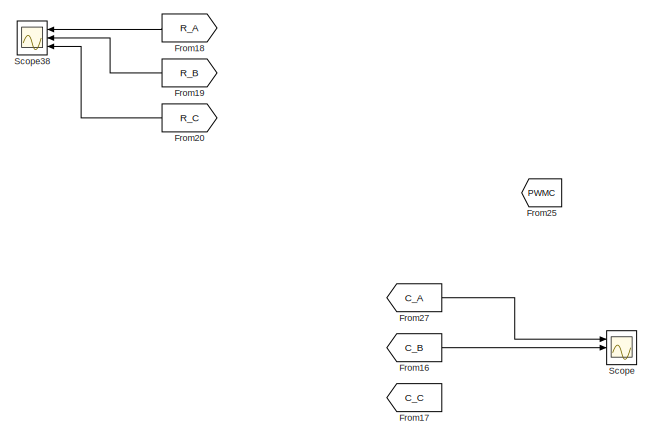
[diagram: root canvas - part 1/16, top center region]
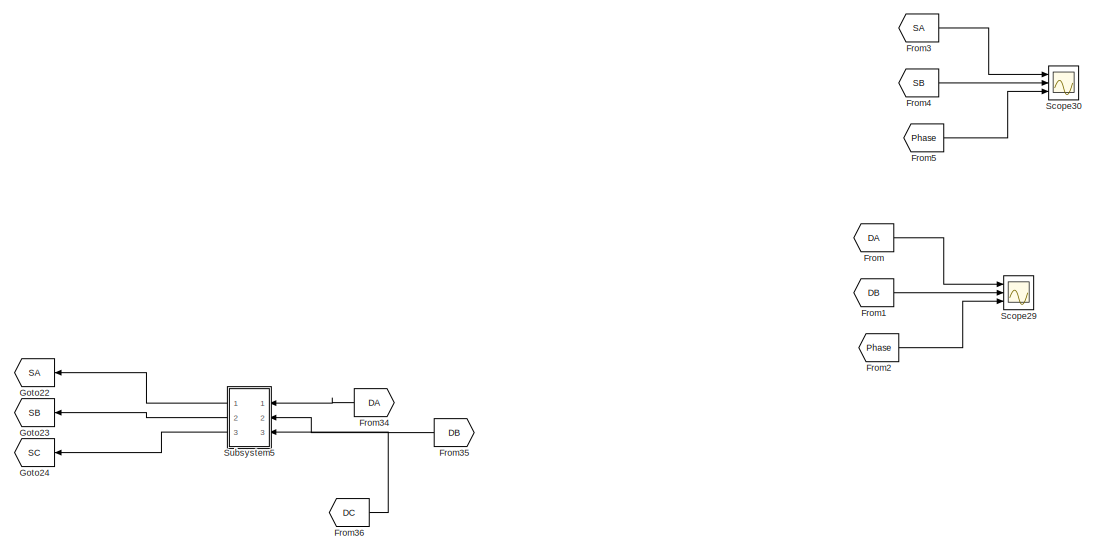
[diagram: root canvas - part 2/16, top center region]
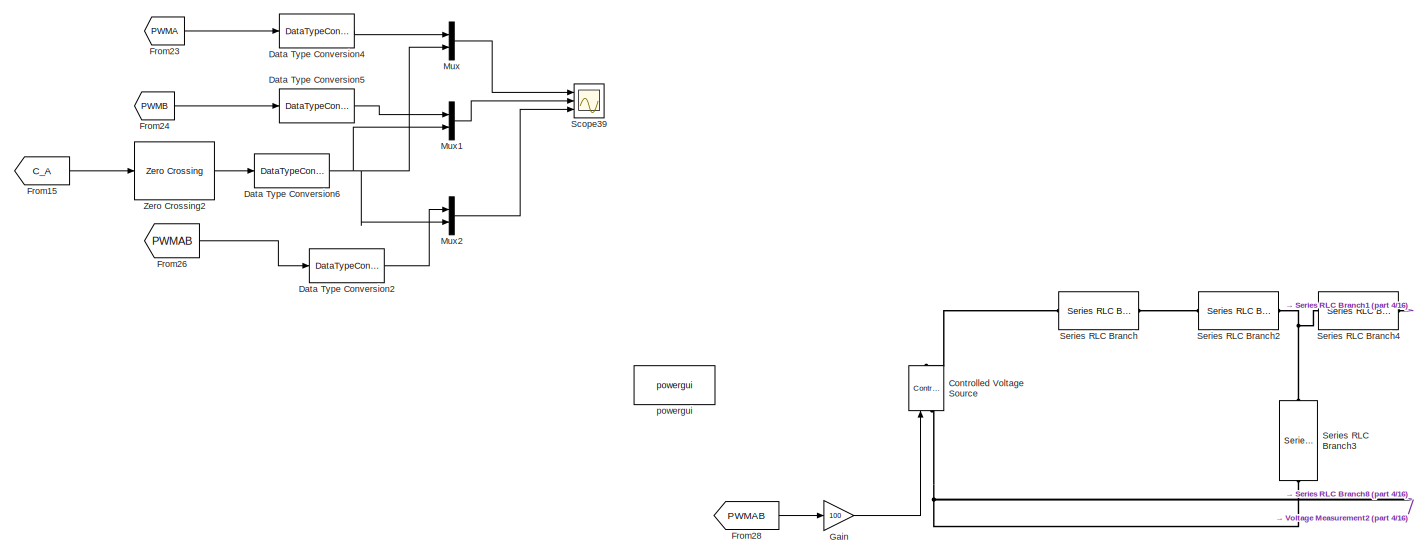
[diagram: root canvas - part 3/16, top right region]
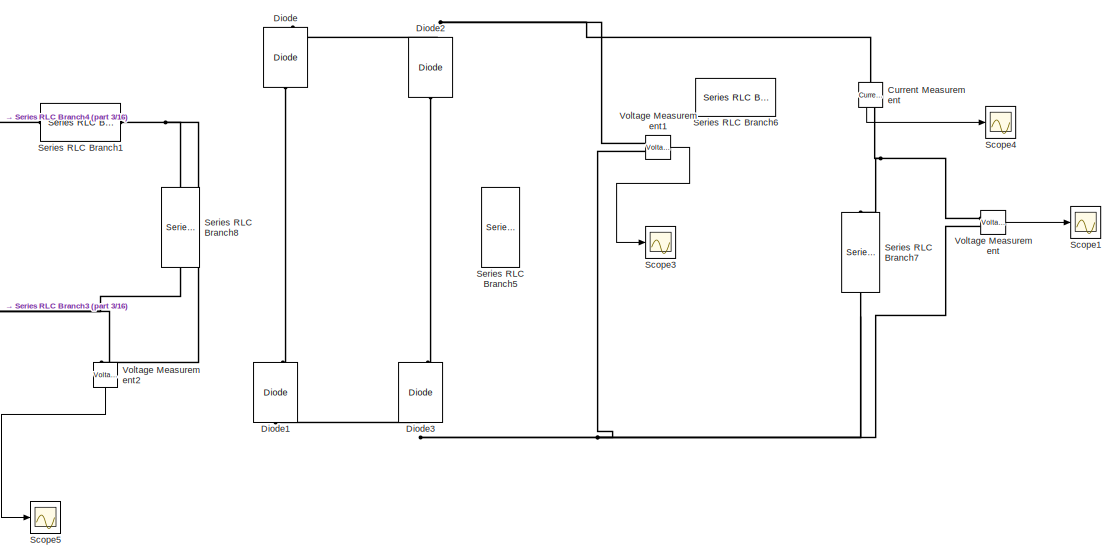
[diagram: root canvas - part 4/16, top right region]
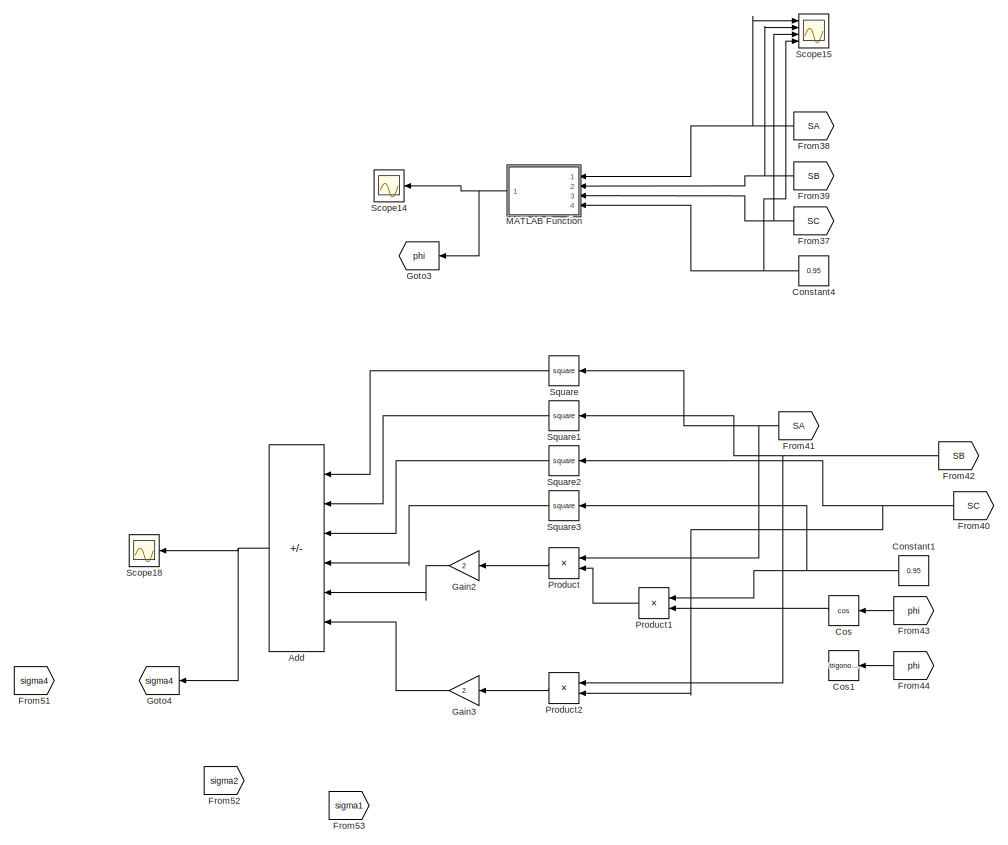
[diagram: root canvas - part 5/16, top left region]
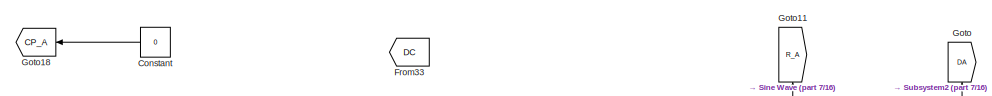
[diagram: root canvas - part 6/16, top center region]
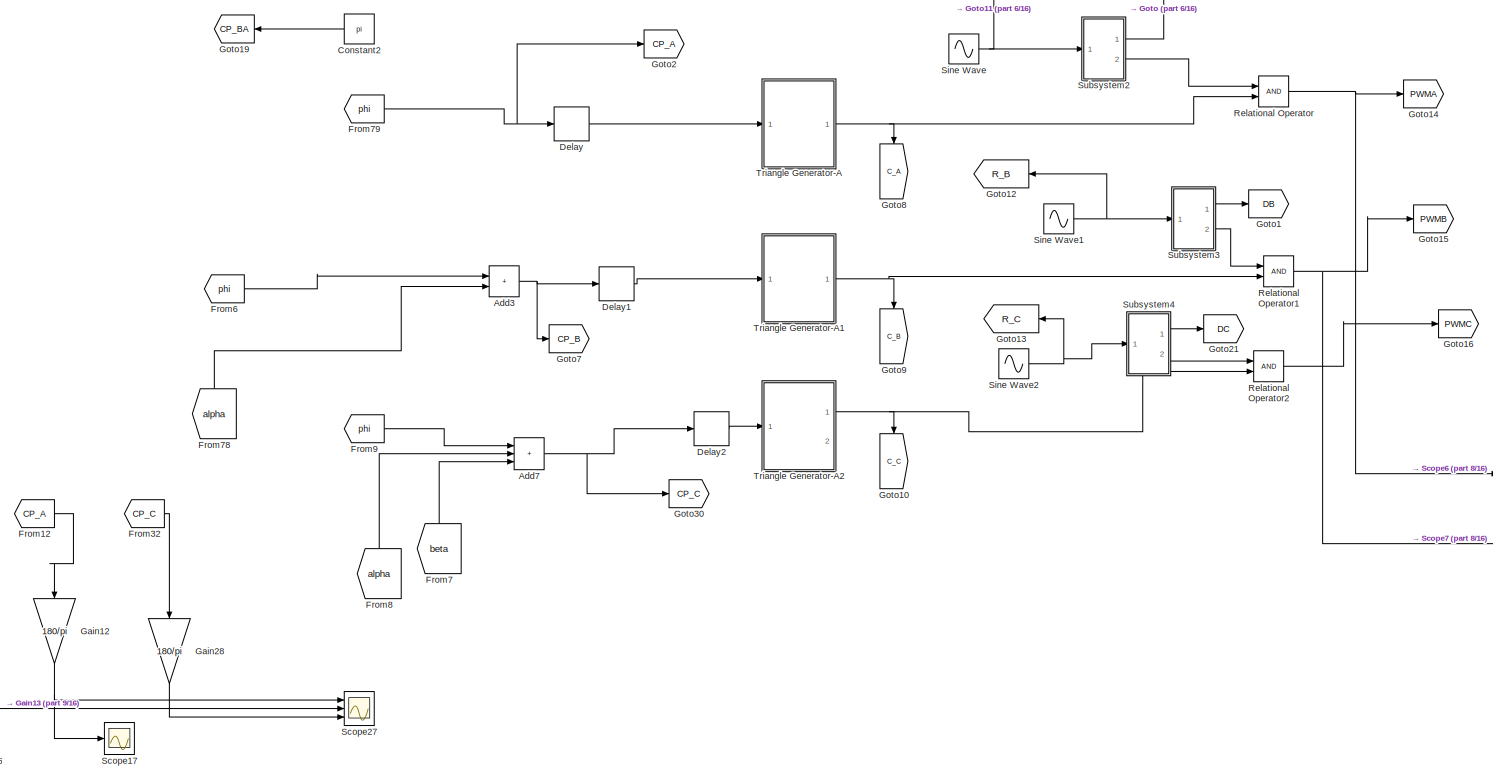
[diagram: root canvas - part 7/16, central region]
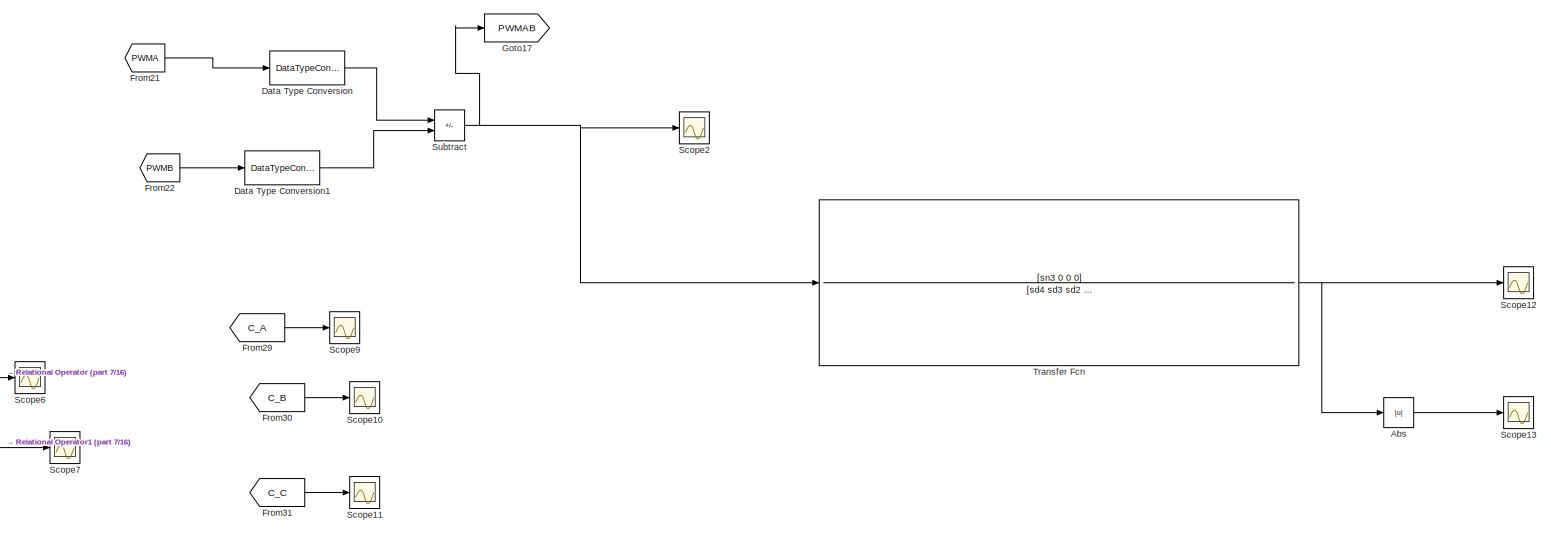
[diagram: root canvas - part 8/16, middle right region]
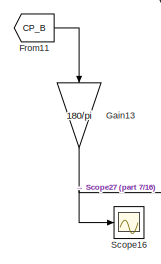
[diagram: root canvas - part 9/16, central region]
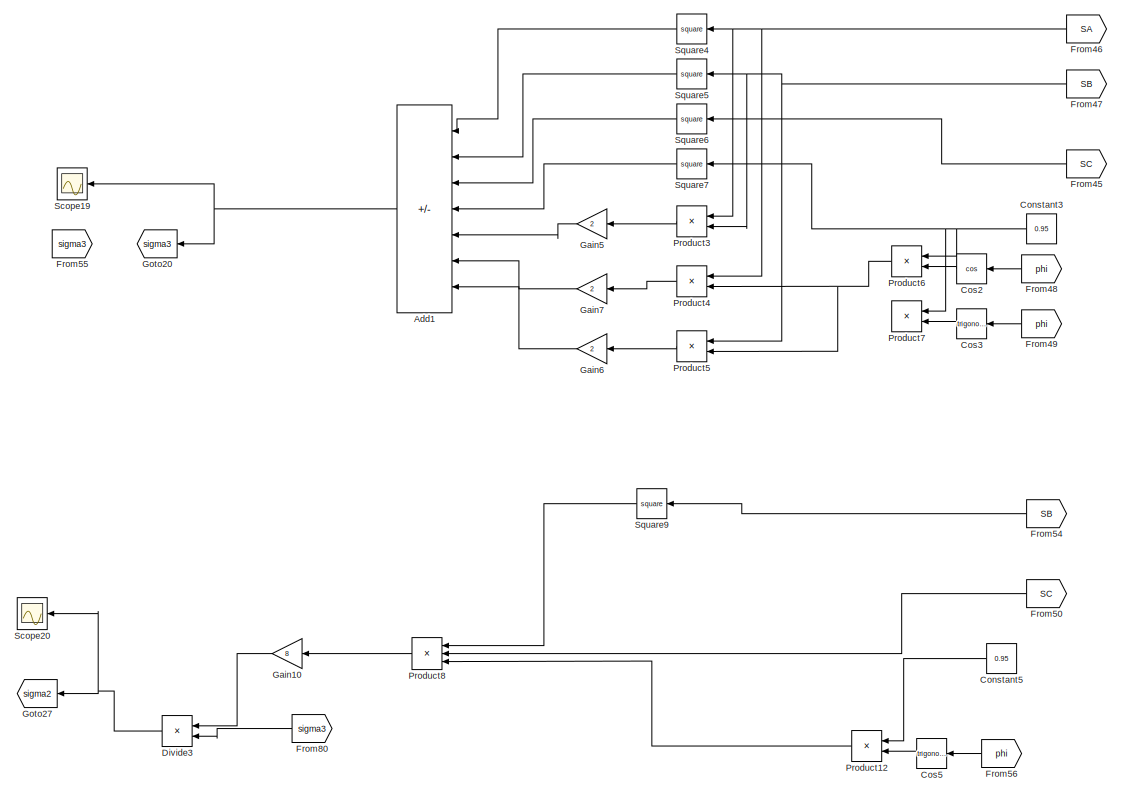
[diagram: root canvas - part 10/16, middle left region]
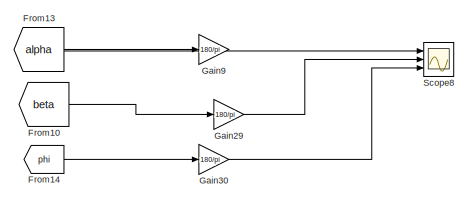
[diagram: root canvas - part 11/16, central region]
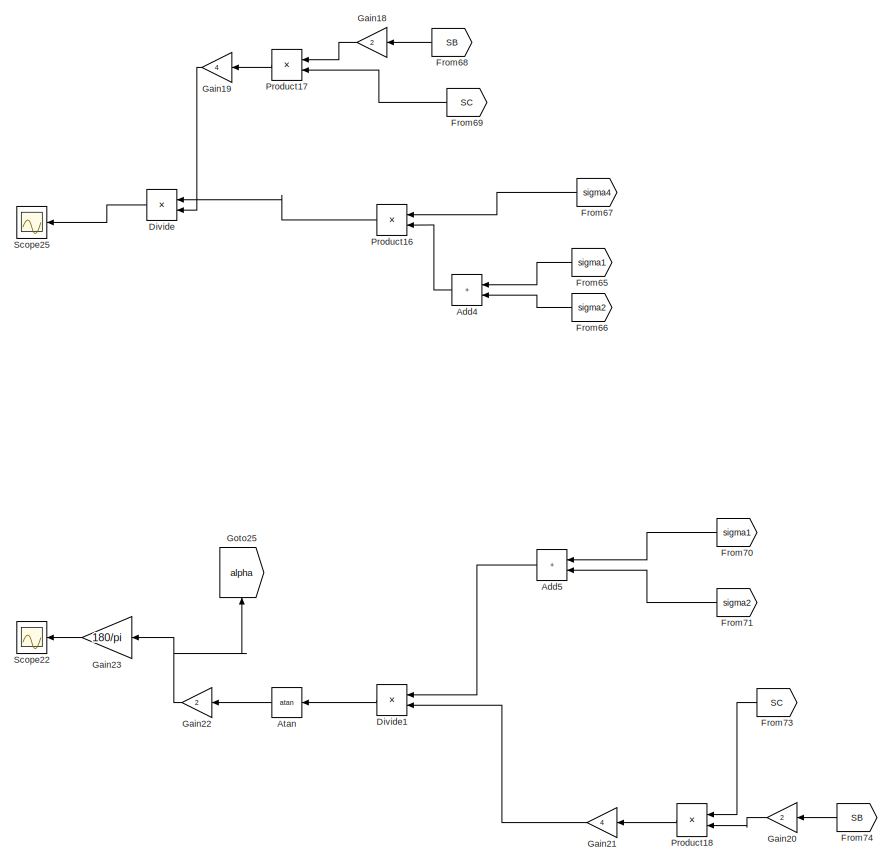
[diagram: root canvas - part 12/16, middle left region]
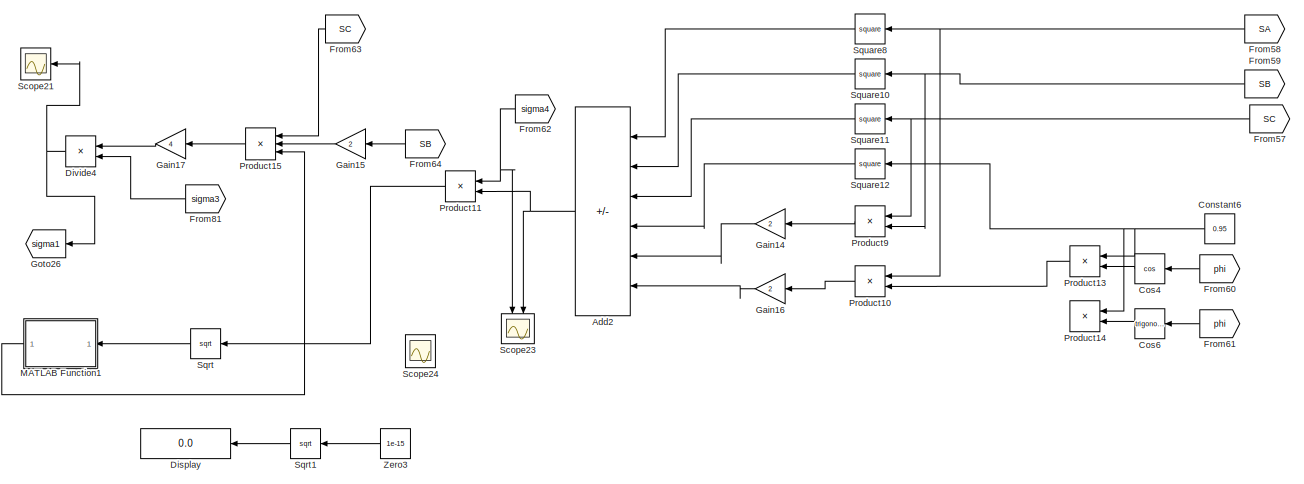
[diagram: root canvas - part 13/16, bottom left region]
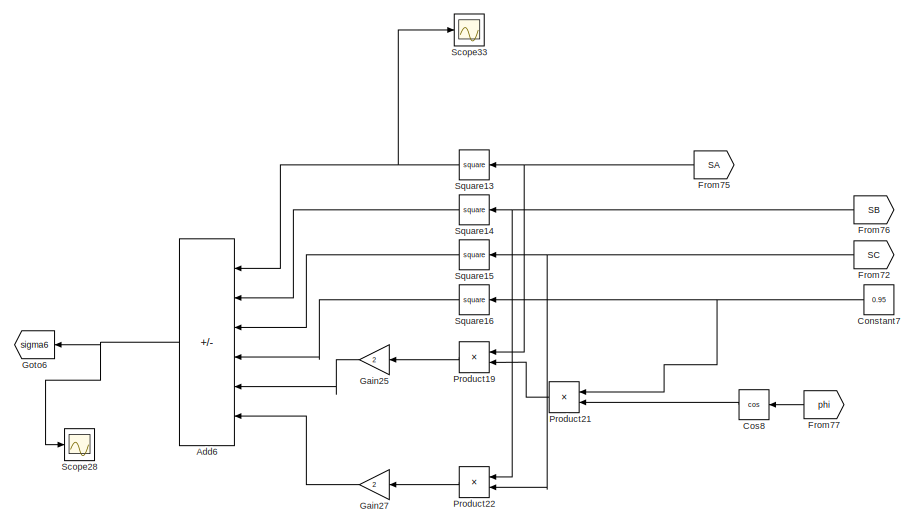
[diagram: root canvas - part 14/16, bottom center region]
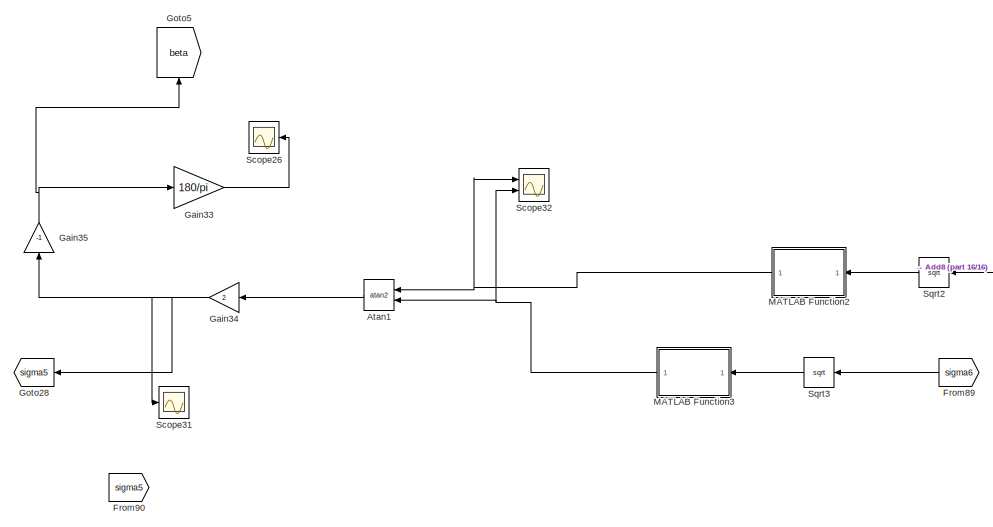
[diagram: root canvas - part 15/16, bottom left region]
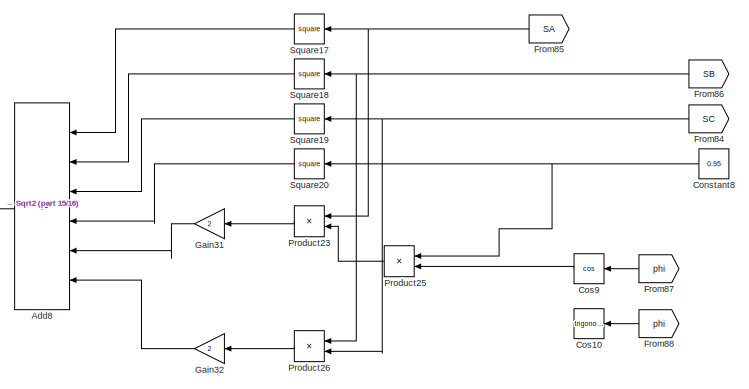
[diagram: root canvas - part 16/16, bottom left region]
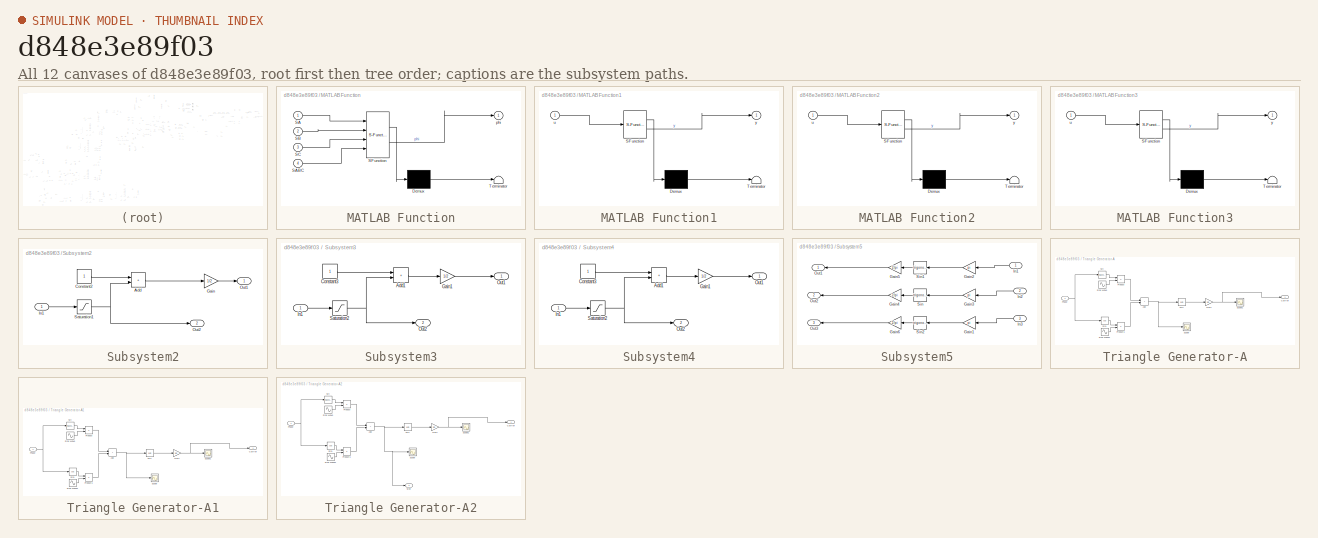
[diagram: thumbnail index - all 12 canvases of the model, root first then tree order]
MODEL slx_d848e3e89f03
KIND model
CONFIG AbsTol = auto
CONFIG EnableMultiTasking = off
CONFIG FixedStep = 1e-7
CONFIG InitFcn = fsw=50e3;\nma=0.6;\nffund=100;\n\nL1=63e-6;\nL2=50e-6;\nM=18e-6;\nC1=12.2e-9;\nC2=14.5e-9;\nR=20;\n\nsn3=C1*C2*M*R;\nsd4=C1*C2*L1*L2+C1*C2*L1*M+C1*C2*L2*M;\nsd3= C1*C2*L1*R+ C1*C2*M*R;\nsd2= C1*L1+C2*L2+C1*M+C2*M;\nsd1=C2*R;\nsd0=1;\n
CONFIG MaxStep = 1e-7
CONFIG MinStep = auto
CONFIG RelTol = 1e-6
CONFIG SampleTimeConstraint = Unconstrained
CONFIG SolverName = FixedStepAuto
CONFIG StartTime = 0.0
CONFIG StopTime = 0.05
BLOCK [Abs] Abs
  SaturateOnIntegerOverflow = off
BLOCK [Sum] Add
  IconShape = rectangular
  Inputs = +--+-+
  NameLocation = top
  Ports = [6, 1]
BLOCK [Sum] Add1
  IconShape = rectangular
  Inputs = ++-+--+
  NameLocation = top
  Ports = [7, 1]
BLOCK [Sum] Add2
  IconShape = rectangular
  Inputs = -++-++
  NameLocation = top
  Ports = [6, 1]
BLOCK [Sum] Add3
  IconShape = rectangular
  Ports = [2, 1]
BLOCK [Sum] Add4
  IconShape = rectangular
  NameLocation = top
  Ports = [2, 1]
BLOCK [Sum] Add5
  IconShape = rectangular
  NameLocation = top
  Ports = [2, 1]
BLOCK [Sum] Add6
  IconShape = rectangular
  Inputs = +--+-+
  NameLocation = top
  Ports = [6, 1]
BLOCK [Sum] Add7
  IconShape = rectangular
  Inputs = +++
  Ports = [3, 1]
BLOCK [Sum] Add8
  IconShape = rectangular
  Inputs = -++-++
  NameLocation = top
  Ports = [6, 1]
BLOCK [Trigonometry] Atan
  NameLocation = top
  Operator = atan
  Ports = [1, 1]
BLOCK [Trigonometry] Atan1
  NameLocation = top
  Operator = atan2
  Ports = [2, 1]
BLOCK [Constant] Constant
  Commented = on
  NameLocation = top
  Value = 0
BLOCK [Constant] Constant1
  NameLocation = top
  Value = 0.95
BLOCK [Constant] Constant2
  Commented = on
  NameLocation = top
  Value = pi
BLOCK [Constant] Constant3
  NameLocation = top
  Value = 0.95
BLOCK [Constant] Constant4
  NameLocation = top
  Value = 0.95
BLOCK [Constant] Constant5
  NameLocation = top
  Value = 0.95
BLOCK [Constant] Constant6
  NameLocation = top
  Value = 0.95
BLOCK [Constant] Constant7
  NameLocation = top
  Value = 0.95
BLOCK [Constant] Constant8
  NameLocation = top
  Value = 0.95
BLOCK [Reference] Controlled Voltage Source  REF=spsControlledVoltageSourceLib/Controlled Voltage Source
  Ports = [1, 0, 0, 0, 0, 1, 1]
  SourceBlock = spsControlledVoltageSourceLib/Controlled Voltage Source
  SourceProductBaseCode = PS
  SourceType = Controlled Voltage Source
BLOCK [Trigonometry] Cos
  NameLocation = top
  Operator = cos
  Ports = [1, 1]
BLOCK [Trigonometry] Cos1
  NameLocation = top
  Ports = [1, 1]
BLOCK [Trigonometry] Cos10
  NameLocation = top
  Ports = [1, 1]
BLOCK [Trigonometry] Cos2
  NameLocation = top
  Operator = cos
  Ports = [1, 1]
BLOCK [Trigonometry] Cos3
  NameLocation = top
  Ports = [1, 1]
BLOCK [Trigonometry] Cos4
  NameLocation = top
  Operator = cos
  Ports = [1, 1]
BLOCK [Trigonometry] Cos5
  NameLocation = top
  Ports = [1, 1]
BLOCK [Trigonometry] Cos6
  NameLocation = top
  Ports = [1, 1]
BLOCK [Trigonometry] Cos8
  NameLocation = top
  Operator = cos
  Ports = [1, 1]
BLOCK [Trigonometry] Cos9
  NameLocation = top
  Operator = cos
  Ports = [1, 1]
BLOCK [Reference] Current Measurement  REF=spsCurrentMeasurementLib/Current Measurement
  NameLocation = left
  Ports = [0, 1, 0, 0, 0, 1, 1]
  SourceBlock = spsCurrentMeasurementLib/Current Measurement
  SourceProductBaseCode = PS
  SourceType = Current Measurement
  UserDataPersistent = on
BLOCK [DataTypeConversion] Data Type Conversion
  RndMeth = Floor
  SaturateOnIntegerOverflow = off
BLOCK [DataTypeConversion] Data Type Conversion1
  RndMeth = Floor
  SaturateOnIntegerOverflow = off
BLOCK [DataTypeConversion] Data Type Conversion2
  RndMeth = Floor
  SaturateOnIntegerOverflow = off
BLOCK [DataTypeConversion] Data Type Conversion4
  RndMeth = Floor
  SaturateOnIntegerOverflow = off
BLOCK [DataTypeConversion] Data Type Conversion5
  RndMeth = Floor
  SaturateOnIntegerOverflow = off
BLOCK [DataTypeConversion] Data Type Conversion6
  RndMeth = Floor
  SaturateOnIntegerOverflow = off
BLOCK [Delay] Delay
  DelayLength = 1
  InputPortMap = u0
  Ports = [1, 1]
BLOCK [Delay] Delay1
  DelayLength = 1
  InputPortMap = u0
  Ports = [1, 1]
BLOCK [Delay] Delay2
  DelayLength = 1
  InputPortMap = u0
  Ports = [1, 1]
BLOCK [Reference] Diode  REF=spsDiodeLib/Diode
  NameLocation = right
  Ports = [0, 1, 0, 0, 0, 1, 1]
  SourceBlock = spsDiodeLib/Diode
  SourceProductBaseCode = PS
  SourceType = Diode
BLOCK [Reference] Diode1  REF=spsDiodeLib/Diode
  NameLocation = right
  Ports = [0, 1, 0, 0, 0, 1, 1]
  SourceBlock = spsDiodeLib/Diode
  SourceProductBaseCode = PS
  SourceType = Diode
BLOCK [Reference] Diode2  REF=spsDiodeLib/Diode
  NameLocation = right
  Ports = [0, 1, 0, 0, 0, 1, 1]
  SourceBlock = spsDiodeLib/Diode
  SourceProductBaseCode = PS
  SourceType = Diode
BLOCK [Reference] Diode3  REF=spsDiodeLib/Diode
  NameLocation = right
  Ports = [0, 1, 0, 0, 0, 1, 1]
  SourceBlock = spsDiodeLib/Diode
  SourceProductBaseCode = PS
  SourceType = Diode
BLOCK [Display] Display
  Decimation = 1
  NameLocation = top
  Ports = [1]
BLOCK [Product] Divide
  Inputs = */
  NameLocation = top
  Ports = [2, 1]
BLOCK [Product] Divide1
  Inputs = */
  NameLocation = top
  Ports = [2, 1]
BLOCK [Product] Divide3
  Inputs = */
  NameLocation = top
  Ports = [2, 1]
BLOCK [Product] Divide4
  Inputs = */
  NameLocation = top
  Ports = [2, 1]
BLOCK [From] From
  GotoTag = DA
BLOCK [From] From1
  GotoTag = DB
BLOCK [From] From10
  GotoTag = beta
BLOCK [From] From11
  GotoTag = CP_B
BLOCK [From] From12
  GotoTag = CP_A
BLOCK [From] From13
  GotoTag = alpha
BLOCK [From] From14
  GotoTag = phi
  NameLocation = top
BLOCK [From] From15
  GotoTag = C_A
BLOCK [From] From16
  GotoTag = C_B
BLOCK [From] From17
  GotoTag = C_C
BLOCK [From] From18
  GotoTag = R_A
  NameLocation = top
BLOCK [From] From19
  GotoTag = R_B
BLOCK [From] From2
  GotoTag = Phase
BLOCK [From] From20
  GotoTag = R_C
BLOCK [From] From21
  GotoTag = PWMA
BLOCK [From] From22
  GotoTag = PWMB
BLOCK [From] From23
  GotoTag = PWMA
BLOCK [From] From24
  GotoTag = PWMB
BLOCK [From] From25
  GotoTag = PWMC
BLOCK [From] From26
  GotoTag = PWMAB
BLOCK [From] From27
  GotoTag = C_A
BLOCK [From] From28
  GotoTag = PWMAB
BLOCK [From] From29
  GotoTag = C_A
BLOCK [From] From3
  GotoTag = SA
BLOCK [From] From30
  GotoTag = C_B
BLOCK [From] From31
  GotoTag = C_C
BLOCK [From] From32
  GotoTag = CP_C
BLOCK [From] From33
  GotoTag = DC
BLOCK [From] From34
  GotoTag = DA
  NameLocation = top
BLOCK [From] From35
  GotoTag = DB
  NameLocation = top
BLOCK [From] From36
  GotoTag = DC
BLOCK [From] From37
  GotoTag = SC
BLOCK [From] From38
  GotoTag = SA
BLOCK [From] From39
  GotoTag = SB
BLOCK [From] From4
  GotoTag = SB
BLOCK [From] From40
  GotoTag = SC
BLOCK [From] From41
  GotoTag = SA
BLOCK [From] From42
  GotoTag = SB
BLOCK [From] From43
  GotoTag = phi
BLOCK [From] From44
  GotoTag = phi
BLOCK [From] From45
  GotoTag = SC
BLOCK [From] From46
  GotoTag = SA
BLOCK [From] From47
  GotoTag = SB
BLOCK [From] From48
  GotoTag = phi
BLOCK [From] From49
  GotoTag = phi
BLOCK [From] From5
  GotoTag = Phase
BLOCK [From] From50
  GotoTag = SC
BLOCK [From] From51
  GotoTag = sigma4
BLOCK [From] From52
  GotoTag = sigma2
BLOCK [From] From53
  GotoTag = sigma1
BLOCK [From] From54
  GotoTag = SB
BLOCK [From] From55
  GotoTag = sigma3
BLOCK [From] From56
  GotoTag = phi
BLOCK [From] From57
  GotoTag = SC
BLOCK [From] From58
  GotoTag = SA
BLOCK [From] From59
  GotoTag = SB
BLOCK [From] From6
  GotoTag = phi
  NameLocation = top
BLOCK [From] From60
  GotoTag = phi
BLOCK [From] From61
  GotoTag = phi
BLOCK [From] From62
  GotoTag = sigma4
BLOCK [From] From63
  GotoTag = SC
BLOCK [From] From64
  GotoTag = SB
BLOCK [From] From65
  GotoTag = sigma1
BLOCK [From] From66
  GotoTag = sigma2
BLOCK [From] From67
  GotoTag = sigma4
BLOCK [From] From68
  GotoTag = SB
BLOCK [From] From69
  GotoTag = SC
BLOCK [From] From7
  GotoTag = beta
  NameLocation = right
BLOCK [From] From70
  GotoTag = sigma1
BLOCK [From] From71
  GotoTag = sigma2
BLOCK [From] From72
  GotoTag = SC
BLOCK [From] From73
  GotoTag = SC
BLOCK [From] From74
  GotoTag = SB
BLOCK [From] From75
  GotoTag = SA
BLOCK [From] From76
  GotoTag = SB
BLOCK [From] From77
  GotoTag = phi
BLOCK [From] From78
  GotoTag = alpha
  NameLocation = right
BLOCK [From] From79
  GotoTag = phi
  NameLocation = top
BLOCK [From] From8
  GotoTag = alpha
  NameLocation = right
BLOCK [From] From80
  GotoTag = sigma3
BLOCK [From] From81
  GotoTag = sigma3
BLOCK [From] From84
  GotoTag = SC
BLOCK [From] From85
  GotoTag = SA
BLOCK [From] From86
  GotoTag = SB
BLOCK [From] From87
  GotoTag = phi
BLOCK [From] From88
  GotoTag = phi
BLOCK [From] From89
  GotoTag = sigma6
BLOCK [From] From9
  GotoTag = phi
  NameLocation = top
BLOCK [From] From90
  GotoTag = sigma5
BLOCK [Gain] Gain
  Gain = 100
BLOCK [Gain] Gain10
  Gain = 8
  NameLocation = top
BLOCK [Gain] Gain12
  Gain = 180/pi
  NameLocation = left
BLOCK [Gain] Gain13
  Gain = 180/pi
  NameLocation = left
BLOCK [Gain] Gain14
  Gain = 2
  NameLocation = top
BLOCK [Gain] Gain15
  Gain = 2
  NameLocation = top
BLOCK [Gain] Gain16
  Gain = 2
  NameLocation = top
BLOCK [Gain] Gain17
  Gain = 4
  NameLocation = top
BLOCK [Gain] Gain18
  Gain = 2
  NameLocation = top
BLOCK [Gain] Gain19
  Gain = 4
  NameLocation = top
BLOCK [Gain] Gain2
  Gain = 2
  NameLocation = top
BLOCK [Gain] Gain20
  Gain = 2
  NameLocation = top
BLOCK [Gain] Gain21
  Gain = 4
  NameLocation = top
BLOCK [Gain] Gain22
  Gain = 2
  NameLocation = top
BLOCK [Gain] Gain23
  Gain = 180/pi
  NameLocation = top
BLOCK [Gain] Gain25
  Gain = 2
  NameLocation = top
BLOCK [Gain] Gain27
  Gain = 2
  NameLocation = top
BLOCK [Gain] Gain28
  Gain = 180/pi
  NameLocation = left
BLOCK [Gain] Gain29
  Gain = 180/pi
BLOCK [Gain] Gain3
  Gain = 2
  NameLocation = top
BLOCK [Gain] Gain30
  Gain = 180/pi
BLOCK [Gain] Gain31
  Gain = 2
  NameLocation = top
BLOCK [Gain] Gain32
  Gain = 2
  NameLocation = top
BLOCK [Gain] Gain33
  Gain = 180/pi
BLOCK [Gain] Gain34
  Gain = 2
  NameLocation = top
BLOCK [Gain] Gain35
  Gain = -1
  NameLocation = right
BLOCK [Gain] Gain5
  Gain = 2
  NameLocation = top
BLOCK [Gain] Gain6
  Gain = 2
  NameLocation = top
BLOCK [Gain] Gain7
  Gain = 2
  NameLocation = top
BLOCK [Gain] Gain9
  Gain = 180/pi
BLOCK [Goto] Goto
  GotoTag = DA
  NameLocation = right
BLOCK [Goto] Goto1
  GotoTag = DB
BLOCK [Goto] Goto10
  GotoTag = C_C
  NameLocation = left
BLOCK [Goto] Goto11
  GotoTag = R_A
  NameLocation = right
BLOCK [Goto] Goto12
  GotoTag = R_B
  NameLocation = top
BLOCK [Goto] Goto13
  GotoTag = R_C
  NameLocation = top
BLOCK [Goto] Goto14
  GotoTag = PWMA
BLOCK [Goto] Goto15
  GotoTag = PWMB
BLOCK [Goto] Goto16
  GotoTag = PWMC
BLOCK [Goto] Goto17
  GotoTag = PWMAB
BLOCK [Goto] Goto18
  Commented = on
  GotoTag = CP_A
  NameLocation = top
BLOCK [Goto] Goto19
  Commented = on
  GotoTag = CP_BA
  NameLocation = top
BLOCK [Goto] Goto2
  GotoTag = CP_A
BLOCK [Goto] Goto20
  GotoTag = sigma3
BLOCK [Goto] Goto21
  GotoTag = DC
BLOCK [Goto] Goto22
  GotoTag = SA
  NameLocation = top
BLOCK [Goto] Goto23
  GotoTag = SB
  NameLocation = top
BLOCK [Goto] Goto24
  GotoTag = SC
  NameLocation = top
BLOCK [Goto] Goto25
  GotoTag = alpha
  NameLocation = left
BLOCK [Goto] Goto26
  GotoTag = sigma1
BLOCK [Goto] Goto27
  GotoTag = sigma2
BLOCK [Goto] Goto28
  GotoTag = sigma5
BLOCK [Goto] Goto3
  GotoTag = phi
BLOCK [Goto] Goto30
  GotoTag = CP_C
BLOCK [Goto] Goto4
  GotoTag = sigma4
BLOCK [Goto] Goto5
  GotoTag = beta
  NameLocation = left
BLOCK [Goto] Goto6
  GotoTag = sigma6
BLOCK [Goto] Goto7
  GotoTag = CP_B
BLOCK [Goto] Goto8
  GotoTag = C_A
  NameLocation = left
BLOCK [Goto] Goto9
  GotoTag = C_B
  NameLocation = left
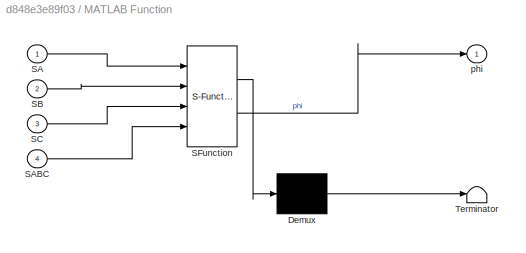
BLOCK [SubSystem] MATLAB Function
  ErrorFcn = Stateflow.Translate.translate
  NameLocation = top
  PermitHierarchicalResolution = ExplicitOnly
  Ports = [4, 1]
  RequestExecContextInheritance = off
  SFBlockType = MATLAB Function
  TreatAsAtomicUnit = on
BLOCK [Demux] MATLAB Function/ Demux 
  Outputs = 1
  Ports = [1, 1]
BLOCK [S-Function] MATLAB Function/ SFunction 
  EnableBusSupport = on
  FunctionName = sf_sfun
  PortCounts = [4 2]
  Ports = [4, 2]
  SFcnIsStateOwnerBlock = off
  SFunctionDeploymentMode = off
  Tag = Stateflow S-Function 2
BLOCK [Terminator] MATLAB Function/ Terminator 
BLOCK [Inport] MATLAB Function/SA
BLOCK [Inport] MATLAB Function/SABC
  Port = 4
BLOCK [Inport] MATLAB Function/SB
  Port = 2
BLOCK [Inport] MATLAB Function/SC
  Port = 3
BLOCK [Outport] MATLAB Function/phi
BLOCK [SubSystem] MATLAB Function1
  ErrorFcn = Stateflow.Translate.translate
  NameLocation = top
  PermitHierarchicalResolution = ExplicitOnly
  Ports = [1, 1]
  RequestExecContextInheritance = off
  SFBlockType = MATLAB Function
  TreatAsAtomicUnit = on
BLOCK [Demux] MATLAB Function1/ Demux 
  Outputs = 1
  Ports = [1, 1]
BLOCK [S-Function] MATLAB Function1/ SFunction 
  EnableBusSupport = on
  FunctionName = sf_sfun
  PortCounts = [1 2]
  Ports = [1, 2]
  SFcnIsStateOwnerBlock = off
  SFunctionDeploymentMode = off
  Tag = Stateflow S-Function 1
BLOCK [Terminator] MATLAB Function1/ Terminator 
BLOCK [Inport] MATLAB Function1/u
BLOCK [Outport] MATLAB Function1/y
BLOCK [SubSystem] MATLAB Function2
  ErrorFcn = Stateflow.Translate.translate
  NameLocation = top
  PermitHierarchicalResolution = ExplicitOnly
  Ports = [1, 1]
  RequestExecContextInheritance = off
  SFBlockType = MATLAB Function
  TreatAsAtomicUnit = on
BLOCK [Demux] MATLAB Function2/ Demux 
  Outputs = 1
  Ports = [1, 1]
BLOCK [S-Function] MATLAB Function2/ SFunction 
  EnableBusSupport = on
  FunctionName = sf_sfun
  PortCounts = [1 2]
  Ports = [1, 2]
  SFcnIsStateOwnerBlock = off
  SFunctionDeploymentMode = off
  Tag = Stateflow S-Function 3
BLOCK [Terminator] MATLAB Function2/ Terminator 
BLOCK [Inport] MATLAB Function2/u
BLOCK [Outport] MATLAB Function2/y
BLOCK [SubSystem] MATLAB Function3
  ErrorFcn = Stateflow.Translate.translate
  NameLocation = top
  PermitHierarchicalResolution = ExplicitOnly
  Ports = [1, 1]
  RequestExecContextInheritance = off
  SFBlockType = MATLAB Function
  TreatAsAtomicUnit = on
BLOCK [Demux] MATLAB Function3/ Demux 
  Outputs = 1
  Ports = [1, 1]
BLOCK [S-Function] MATLAB Function3/ SFunction 
  EnableBusSupport = on
  FunctionName = sf_sfun
  PortCounts = [1 2]
  Ports = [1, 2]
  SFcnIsStateOwnerBlock = off
  SFunctionDeploymentMode = off
  Tag = Stateflow S-Function 4
BLOCK [Terminator] MATLAB Function3/ Terminator 
BLOCK [Inport] MATLAB Function3/u
BLOCK [Outport] MATLAB Function3/y
BLOCK [Mux] Mux
  DisplayOption = bar
  Inputs = 2
  Ports = [2, 1]
BLOCK [Mux] Mux1
  DisplayOption = bar
  Inputs = 2
  Ports = [2, 1]
BLOCK [Mux] Mux2
  DisplayOption = bar
  Inputs = 2
  Ports = [2, 1]
BLOCK [Product] Product
  NameLocation = top
  Ports = [2, 1]
BLOCK [Product] Product1
  NameLocation = top
  Ports = [2, 1]
BLOCK [Product] Product10
  NameLocation = top
  Ports = [2, 1]
BLOCK [Product] Product11
  NameLocation = top
  Ports = [2, 1]
BLOCK [Product] Product12
  NameLocation = top
  Ports = [2, 1]
BLOCK [Product] Product13
  NameLocation = top
  Ports = [2, 1]
BLOCK [Product] Product14
  NameLocation = top
  Ports = [2, 1]
BLOCK [Product] Product15
  Inputs = 3
  NameLocation = top
  Ports = [3, 1]
BLOCK [Product] Product16
  NameLocation = top
  Ports = [2, 1]
BLOCK [Product] Product17
  NameLocation = top
  Ports = [2, 1]
BLOCK [Product] Product18
  NameLocation = top
  Ports = [2, 1]
BLOCK [Product] Product19
  NameLocation = top
  Ports = [2, 1]
BLOCK [Product] Product2
  NameLocation = top
  Ports = [2, 1]
BLOCK [Product] Product21
  NameLocation = top
  Ports = [2, 1]
BLOCK [Product] Product22
  NameLocation = top
  Ports = [2, 1]
BLOCK [Product] Product23
  NameLocation = top
  Ports = [2, 1]
BLOCK [Product] Product25
  NameLocation = top
  Ports = [2, 1]
BLOCK [Product] Product26
  NameLocation = top
  Ports = [2, 1]
BLOCK [Product] Product3
  NameLocation = top
  Ports = [2, 1]
BLOCK [Product] Product4
  NameLocation = top
  Ports = [2, 1]
BLOCK [Product] Product5
  NameLocation = top
  Ports = [2, 1]
BLOCK [Product] Product6
  NameLocation = top
  Ports = [2, 1]
BLOCK [Product] Product7
  NameLocation = top
  Ports = [2, 1]
BLOCK [Product] Product8
  Inputs = 3
  NameLocation = top
  Ports = [3, 1]
BLOCK [Product] Product9
  NameLocation = top
  Ports = [2, 1]
BLOCK [RelationalOperator] Relational Operator
  InputSameDT = off
  OutDataTypeStr = boolean
  Ports = [2, 1]
  RndMeth = Simplest
BLOCK [RelationalOperator] Relational Operator1
  InputSameDT = off
  OutDataTypeStr = boolean
  Ports = [2, 1]
  RndMeth = Simplest
BLOCK [RelationalOperator] Relational Operator2
  InputSameDT = off
  OutDataTypeStr = boolean
  Ports = [2, 1]
  RndMeth = Simplest
BLOCK [Scope] Scope
  Floating = off
  NumInputPorts = 3
  Ports = [3]
  ScopeSpecificationString = Simulink.scopes.TimeScopeBlockCfg('CurrentConfiguration', extmgr.ConfigurationSet(extmgr.Configuration('Core','General UI',true),extmgr.Configuration('Core','Source UI',true),extmgr.Configuration('Sources','WiredSimulink',true,'DataLoggingVariableName','ScopeData1'),extmgr.Configuration('Visuals','Time Domain',true,'SerializedDisplays',{struct('MinYLimReal','-1.25','MaxYLimReal','1.20187','YLabelR...<+1474ch>
BLOCK [Scope] Scope1
  Floating = off
  NumInputPorts = 1
  Ports = [1]
  ScopeSpecificationString = Simulink.scopes.TimeScopeBlockCfg('CurrentConfiguration', extmgr.ConfigurationSet(extmgr.Configuration('Core','General UI',true),extmgr.Configuration('Core','Source UI',true),extmgr.Configuration('Sources','WiredSimulink',true,'DataLoggingVariableName','ScopeData2'),extmgr.Configuration('Visuals','Time Domain',true,'SerializedDisplays',{struct('MinYLimReal','-5.70914','MaxYLimReal','93.73437','YLa...<+1453ch>
BLOCK [Scope] Scope10
  Floating = off
  NumInputPorts = 1
  Ports = [1]
  ScopeSpecificationString = Simulink.scopes.TimeScopeBlockCfg('CurrentConfiguration', extmgr.ConfigurationSet(extmgr.Configuration('Core','General UI',true),extmgr.Configuration('Core','Source UI',true),extmgr.Configuration('Sources','WiredSimulink',true,'DataLoggingVariableName','CB','DataLogging',true,'DataLoggingSaveFormat','StructureWithTime'),extmgr.Configuration('Visuals','Time Domain',true,'SerializedDisplays',{struct...<+1488ch>
BLOCK [Scope] Scope11
  Floating = off
  NumInputPorts = 1
  Ports = [1]
  ScopeSpecificationString = Simulink.scopes.TimeScopeBlockCfg('CurrentConfiguration', extmgr.ConfigurationSet(extmgr.Configuration('Core','General UI',true),extmgr.Configuration('Core','Source UI',true),extmgr.Configuration('Sources','WiredSimulink',true,'DataLoggingVariableName','CC','DataLogging',true,'DataLoggingSaveFormat','StructureWithTime'),extmgr.Configuration('Visuals','Time Domain',true,'SerializedDisplays',{struct...<+1490ch>
BLOCK [Scope] Scope12
  Floating = off
  NumInputPorts = 1
  Ports = [1]
  ScopeSpecificationString = Simulink.scopes.TimeScopeBlockCfg('CurrentConfiguration', extmgr.ConfigurationSet(extmgr.Configuration('Core','General UI',true),extmgr.Configuration('Core','Source UI',true),extmgr.Configuration('Sources','WiredSimulink',true,'DataLoggingVariableName','ScopeData5','DataLogging',true,'DataLoggingSaveFormat','StructureWithTime'),extmgr.Configuration('Visuals','Time Domain',true,'SerializedDisplays'...<+1510ch>
BLOCK [Scope] Scope13
  Floating = off
  NumInputPorts = 1
  Ports = [1]
  ScopeSpecificationString = Simulink.scopes.TimeScopeBlockCfg('CurrentConfiguration', extmgr.ConfigurationSet(extmgr.Configuration('Core','General UI',true),extmgr.Configuration('Core','Source UI',true),extmgr.Configuration('Sources','WiredSimulink',true,'DataLoggingVariableName','Vrx_rec','DataLogging',true,'DataLoggingSaveFormat','StructureWithTime'),extmgr.Configuration('Visuals','Time Domain',true,'SerializedDisplays',{s...<+1493ch>
BLOCK [Scope] Scope14
  Floating = off
  NameLocation = top
  NumInputPorts = 1
  Ports = [1]
  ScopeSpecificationString = Simulink.scopes.TimeScopeBlockCfg('CurrentConfiguration', extmgr.ConfigurationSet(extmgr.Configuration('Core','General UI',true),extmgr.Configuration('Core','Source UI',true),extmgr.Configuration('Sources','WiredSimulink',true,'DataLoggingVariableName','ScopeData1'),extmgr.Configuration('Visuals','Time Domain',true,'SerializedDisplays',{struct('MinYLimReal','0.39774','MaxYLimReal','0.59774','YLabe...<+1445ch>
BLOCK [Scope] Scope15
  Floating = off
  NumInputPorts = 4
  Ports = [4]
  ScopeSpecificationString = Simulink.scopes.TimeScopeBlockCfg('CurrentConfiguration', extmgr.ConfigurationSet(extmgr.Configuration('Core','General UI',true),extmgr.Configuration('Core','Source UI',true),extmgr.Configuration('Sources','WiredSimulink',true,'DataLoggingVariableName','ScopeData2'),extmgr.Configuration('Visuals','Time Domain',true,'SerializedDisplays',{struct('MinYLimReal','0.38768','MaxYLimReal','1.01248','YLabe...<+1463ch>
BLOCK [Scope] Scope16
  Floating = off
  NumInputPorts = 1
  Ports = [1]
  ScopeSpecificationString = Simulink.scopes.TimeScopeBlockCfg('CurrentConfiguration', extmgr.ConfigurationSet(extmgr.Configuration('Core','General UI',true),extmgr.Configuration('Core','Source UI',true),extmgr.Configuration('Sources','WiredSimulink',true,'DataLoggingVariableName','ScopeData12'),extmgr.Configuration('Visuals','Time Domain',true,'SerializedDisplays',{struct('MinYLimReal','-19.4586','MaxYLimReal','175.12737','Y...<+1449ch>
BLOCK [Scope] Scope17
  Floating = off
  NumInputPorts = 1
  Ports = [1]
  ScopeSpecificationString = Simulink.scopes.TimeScopeBlockCfg('CurrentConfiguration', extmgr.ConfigurationSet(extmgr.Configuration('Core','General UI',true),extmgr.Configuration('Core','Source UI',true),extmgr.Configuration('Sources','WiredSimulink',true,'DataLoggingVariableName','ScopeData13'),extmgr.Configuration('Visuals','Time Domain',true,'SerializedDisplays',{struct('MinYLimReal','-11.24999','MaxYLimReal','101.24991','...<+1453ch>
BLOCK [Scope] Scope18
  Floating = off
  NameLocation = top
  NumInputPorts = 1
  Ports = [1]
  ScopeSpecificationString = Simulink.scopes.TimeScopeBlockCfg('CurrentConfiguration', extmgr.ConfigurationSet(extmgr.Configuration('Core','General UI',true),extmgr.Configuration('Core','Source UI',true),extmgr.Configuration('Sources','WiredSimulink',true,'DataLoggingVariableName','ScopeData3'),extmgr.Configuration('Visuals','Time Domain',true,'SerializedDisplays',{struct('MinYLimReal','-0.00397','MaxYLimReal','0.03574','YLab...<+1381ch>
BLOCK [Scope] Scope19
  Floating = off
  NameLocation = top
  NumInputPorts = 1
  Ports = [1]
  ScopeSpecificationString = Simulink.scopes.TimeScopeBlockCfg('CurrentConfiguration', extmgr.ConfigurationSet(extmgr.Configuration('Core','General UI',true),extmgr.Configuration('Core','Source UI',true),extmgr.Configuration('Sources','WiredSimulink',true,'DataLoggingVariableName','ScopeData4'),extmgr.Configuration('Visuals','Time Domain',true,'SerializedDisplays',{struct('MinYLimReal','1.10138','MaxYLimReal','2.45608','YLabe...<+1361ch>
BLOCK [Scope] Scope2
  Floating = off
  NumInputPorts = 1
  Ports = [1]
  ScopeSpecificationString = Simulink.scopes.TimeScopeBlockCfg('CurrentConfiguration', extmgr.ConfigurationSet(extmgr.Configuration('Core','General UI',true),extmgr.Configuration('Core','Source UI',true),extmgr.Configuration('Sources','WiredSimulink',true,'DataLoggingVariableName','VAB','DataLogging',true,'DataLoggingSaveFormat','StructureWithTime'),extmgr.Configuration('Visuals','Time Domain',true,'SerializedDisplays',{struc...<+1476ch>
BLOCK [Scope] Scope20
  Floating = off
  NameLocation = top
  NumInputPorts = 1
  Ports = [1]
  ScopeSpecificationString = Simulink.scopes.TimeScopeBlockCfg('CurrentConfiguration', extmgr.ConfigurationSet(extmgr.Configuration('Core','General UI',true),extmgr.Configuration('Core','Source UI',true),extmgr.Configuration('Sources','WiredSimulink',true,'DataLoggingVariableName','ScopeData5'),extmgr.Configuration('Visuals','Time Domain',true,'SerializedDisplays',{struct('MinYLimReal','-0.62376','MaxYLimReal','5.61388','YLab...<+1365ch>
BLOCK [Scope] Scope21
  Floating = off
  NameLocation = top
  NumInputPorts = 1
  Ports = [1]
  ScopeSpecificationString = Simulink.scopes.TimeScopeBlockCfg('CurrentConfiguration', extmgr.ConfigurationSet(extmgr.Configuration('Core','General UI',true),extmgr.Configuration('Core','Source UI',true),extmgr.Configuration('Sources','WiredSimulink',true,'DataLoggingVariableName','ScopeData6'),extmgr.Configuration('Visuals','Time Domain',true,'SerializedDisplays',{struct('MinYLimReal','-0.12146','MaxYLimReal','1.09313','YLab...<+1391ch>
BLOCK [Scope] Scope22
  Floating = off
  NameLocation = top
  NumInputPorts = 1
  Ports = [1]
  ScopeSpecificationString = Simulink.scopes.TimeScopeBlockCfg('CurrentConfiguration', extmgr.ConfigurationSet(extmgr.Configuration('Core','General UI',true),extmgr.Configuration('Core','Source UI',true),extmgr.Configuration('Sources','WiredSimulink',true,'DataLoggingVariableName','ScopeData1'),extmgr.Configuration('Visuals','Time Domain',true,'SerializedDisplays',{struct('MinYLimReal','-11.42173','MaxYLimReal','105.94713','Y...<+1400ch>
BLOCK [Scope] Scope23
  Floating = off
  NameLocation = left
  NumInputPorts = 2
  Ports = [2]
  ScopeSpecificationString = Simulink.scopes.TimeScopeBlockCfg('CurrentConfiguration', extmgr.ConfigurationSet(extmgr.Configuration('Core','General UI',true),extmgr.Configuration('Core','Source UI',true),extmgr.Configuration('Sources','WiredSimulink',true,'DataLoggingVariableName','ScopeData8'),extmgr.Configuration('Visuals','Time Domain',true,'SerializedDisplays',{struct('MinYLimReal','-0.32172','MaxYLimReal','2.89552','YLab...<+1422ch>
BLOCK [Scope] Scope24
  Floating = off
  NumInputPorts = 2
  Ports = [2]
  ScopeSpecificationString = Simulink.scopes.TimeScopeBlockCfg('CurrentConfiguration', extmgr.ConfigurationSet(extmgr.Configuration('Core','General UI',true),extmgr.Configuration('Core','Source UI',true),extmgr.Configuration('Sources','WiredSimulink',true,'DataLoggingVariableName','ScopeData9'),extmgr.Configuration('Visuals','Time Domain',true,'SerializedDisplays',{struct('MinYLimReal','-0.0253','MaxYLimReal','0.22767','YLabe...<+1527ch>
BLOCK [Scope] Scope25
  Floating = off
  NameLocation = top
  NumInputPorts = 1
  Ports = [1]
  ScopeSpecificationString = Simulink.scopes.TimeScopeBlockCfg('CurrentConfiguration', extmgr.ConfigurationSet(extmgr.Configuration('Core','General UI',true),extmgr.Configuration('Core','Source UI',true),extmgr.Configuration('Sources','WiredSimulink',true,'DataLoggingVariableName','ScopeData10'),extmgr.Configuration('Visuals','Time Domain',true,'SerializedDisplays',{struct('MinYLimReal','-0.00484','MaxYLimReal','0.0436','YLab...<+1387ch>
BLOCK [Scope] Scope26
  Floating = off
  NameLocation = top
  NumInputPorts = 1
  Ports = [1]
  ScopeSpecificationString = Simulink.scopes.TimeScopeBlockCfg('CurrentConfiguration', extmgr.ConfigurationSet(extmgr.Configuration('Core','General UI',true),extmgr.Configuration('Core','Source UI',true),extmgr.Configuration('Sources','WiredSimulink',true,'DataLoggingVariableName','ScopeData2'),extmgr.Configuration('Visuals','Time Domain',true,'SerializedDisplays',{struct('MinYLimReal','-141.06888','MaxYLimReal','-116.54531',...<+1406ch>
BLOCK [Scope] Scope27
  Floating = off
  NumInputPorts = 3
  Ports = [3]
  ScopeSpecificationString = Simulink.scopes.TimeScopeBlockCfg('CurrentConfiguration', extmgr.ConfigurationSet(extmgr.Configuration('Core','General UI',true),extmgr.Configuration('Core','Source UI',true),extmgr.Configuration('Sources','WiredSimulink',true,'DataLoggingVariableName','ScopeData3'),extmgr.Configuration('Visuals','Time Domain',true,'SerializedDisplays',{struct('MinYLimReal','-22.89999','MaxYLimReal','206.09987','Y...<+1536ch>
BLOCK [Scope] Scope28
  Floating = off
  NumInputPorts = 1
  Ports = [1]
  ScopeSpecificationString = Simulink.scopes.TimeScopeBlockCfg('CurrentConfiguration', extmgr.ConfigurationSet(extmgr.Configuration('Core','General UI',true),extmgr.Configuration('Core','Source UI',true),extmgr.Configuration('Sources','WiredSimulink',true,'DataLoggingVariableName','ScopeData5'),extmgr.Configuration('Visuals','Time Domain',true,'SerializedDisplays',{struct('MinYLimReal','-0.0261','MaxYLimReal','0.2349','YLabel...<+1387ch>
BLOCK [Scope] Scope29
  Floating = off
  NumInputPorts = 3
  Ports = [3]
  ScopeSpecificationString = Simulink.scopes.TimeScopeBlockCfg('CurrentConfiguration', extmgr.ConfigurationSet(extmgr.Configuration('Core','General UI',true),extmgr.Configuration('Core','Source UI',true),extmgr.Configuration('Sources','WiredSimulink',true,'DataLoggingVariableName','ScopeData2'),extmgr.Configuration('Visuals','Time Domain',true,'SerializedDisplays',{struct('MinYLimReal','0.00000','MaxYLimReal','1.00000','YLabe...<+2802ch>
BLOCK [Scope] Scope3
  Floating = off
  NumInputPorts = 1
  Ports = [1]
  ScopeSpecificationString = Simulink.scopes.TimeScopeBlockCfg('CurrentConfiguration', extmgr.ConfigurationSet(extmgr.Configuration('Core','General UI',true),extmgr.Configuration('Core','Source UI',true),extmgr.Configuration('Sources','WiredSimulink',true,'DataLoggingVariableName','ScopeData3'),extmgr.Configuration('Visuals','Time Domain',true,'SerializedDisplays',{struct('MinYLimReal','-1.00000','MaxYLimReal','1.00000','YLab...<+1435ch>
BLOCK [Scope] Scope30
  Floating = off
  NumInputPorts = 3
  Ports = [3]
  ScopeSpecificationString = Simulink.scopes.TimeScopeBlockCfg('CurrentConfiguration', extmgr.ConfigurationSet(extmgr.Configuration('Core','General UI',true),extmgr.Configuration('Core','Source UI',true),extmgr.Configuration('Sources','WiredSimulink',true,'DataLoggingVariableName','ScopeData3'),extmgr.Configuration('Visuals','Time Domain',true,'SerializedDisplays',{struct('MinYLimReal','0.14174','MaxYLimReal','0.69161','YLabe...<+2788ch>
BLOCK [Scope] Scope31
  Floating = off
  NumInputPorts = 1
  Ports = [1]
  ScopeSpecificationString = Simulink.scopes.TimeScopeBlockCfg('CurrentConfiguration', extmgr.ConfigurationSet(extmgr.Configuration('Core','General UI',true),extmgr.Configuration('Core','Source UI',true),extmgr.Configuration('Sources','WiredSimulink',true,'DataLoggingVariableName','ScopeData6'),extmgr.Configuration('Visuals','Time Domain',true,'SerializedDisplays',{struct('MinYLimReal','2.60584','MaxYLimReal','3.37939','YLabe...<+1382ch>
BLOCK [Scope] Scope32
  Floating = off
  NumInputPorts = 2
  Ports = [2]
  ScopeSpecificationString = Simulink.scopes.TimeScopeBlockCfg('CurrentConfiguration', extmgr.ConfigurationSet(extmgr.Configuration('Core','General UI',true),extmgr.Configuration('Core','Source UI',true),extmgr.Configuration('Sources','WiredSimulink',true,'DataLoggingVariableName','ScopeData7'),extmgr.Configuration('Visuals','Time Domain',true,'SerializedDisplays',{struct('MinYLimReal','-0.20054','MaxYLimReal','1.80484','YLab...<+1469ch>
BLOCK [Scope] Scope33
  Floating = off
  NumInputPorts = 1
  Ports = [1]
  ScopeSpecificationString = Simulink.scopes.TimeScopeBlockCfg('CurrentConfiguration', extmgr.ConfigurationSet(extmgr.Configuration('Core','General UI',true),extmgr.Configuration('Core','Source UI',true),extmgr.Configuration('Sources','WiredSimulink',true,'DataLoggingVariableName','ScopeData8'),extmgr.Configuration('Visuals','Time Domain',true,'SerializedDisplays',{struct('MinYLimReal','0.10686','MaxYLimReal','0.43844','YLabe...<+1390ch>
BLOCK [Scope] Scope38
  Floating = off
  NameLocation = top
  NumInputPorts = 3
  Ports = [3]
  ScopeSpecificationString = Simulink.scopes.TimeScopeBlockCfg('CurrentConfiguration', extmgr.ConfigurationSet(extmgr.Configuration('Core','General UI',true),extmgr.Configuration('Core','Source UI',true),extmgr.Configuration('Sources','WiredSimulink',true,'DataLoggingVariableName','ScopeData11'),extmgr.Configuration('Visuals','Time Domain',true,'SerializedDisplays',{struct('MinYLimReal','-1.125','MaxYLimReal','1.125','YLabelR...<+2780ch>
BLOCK [Scope] Scope39
  Floating = off
  NumInputPorts = 3
  Ports = [3]
  ScopeSpecificationString = Simulink.scopes.TimeScopeBlockCfg('CurrentConfiguration', extmgr.ConfigurationSet(extmgr.Configuration('Core','General UI',true),extmgr.Configuration('Core','Source UI',true),extmgr.Configuration('Sources','WiredSimulink',true,'DataLoggingVariableName','ScopeData12'),extmgr.Configuration('Visuals','Time Domain',true,'SerializedDisplays',{struct('MinYLimReal','-0.125','MaxYLimReal','1.125','YLabelR...<+2909ch>
BLOCK [Scope] Scope4
  Floating = off
  NumInputPorts = 1
  Ports = [1]
  ScopeSpecificationString = Simulink.scopes.TimeScopeBlockCfg('CurrentConfiguration', extmgr.ConfigurationSet(extmgr.Configuration('Core','General UI',true),extmgr.Configuration('Core','Source UI',true),extmgr.Configuration('Sources','WiredSimulink',true,'DataLoggingVariableName','ScopeData4'),extmgr.Configuration('Visuals','Time Domain',true,'SerializedDisplays',{struct('MinYLimReal','1.40996','MaxYLimReal','1.43345','YLabe...<+1449ch>
BLOCK [Scope] Scope5
  Floating = off
  NumInputPorts = 1
  Ports = [1]
  ScopeSpecificationString = Simulink.scopes.TimeScopeBlockCfg('CurrentConfiguration', extmgr.ConfigurationSet(extmgr.Configuration('Core','General UI',true),extmgr.Configuration('Core','Source UI',true),extmgr.Configuration('Sources','WiredSimulink',true,'DataLoggingVariableName','VRX','DataLogging',true,'DataLoggingSaveFormat','StructureWithTime'),extmgr.Configuration('Visuals','Time Domain',true,'SerializedDisplays',{struc...<+1521ch>
BLOCK [Scope] Scope6
  Floating = off
  NumInputPorts = 1
  Ports = [1]
  ScopeSpecificationString = Simulink.scopes.TimeScopeBlockCfg('CurrentConfiguration', extmgr.ConfigurationSet(extmgr.Configuration('Core','General UI',true),extmgr.Configuration('Core','Source UI',true),extmgr.Configuration('Sources','WiredSimulink',true,'DataLoggingVariableName','VA','DataLogging',true,'DataLoggingSaveFormat','StructureWithTime'),extmgr.Configuration('Visuals','Time Domain',true,'SerializedDisplays',{struct...<+1486ch>
BLOCK [Scope] Scope7
  Floating = off
  NumInputPorts = 1
  Ports = [1]
  ScopeSpecificationString = Simulink.scopes.TimeScopeBlockCfg('CurrentConfiguration', extmgr.ConfigurationSet(extmgr.Configuration('Core','General UI',true),extmgr.Configuration('Core','Source UI',true),extmgr.Configuration('Sources','WiredSimulink',true,'DataLoggingVariableName','VB','DataLogging',true,'DataLoggingSaveFormat','StructureWithTime'),extmgr.Configuration('Visuals','Time Domain',true,'SerializedDisplays',{struct...<+1487ch>
BLOCK [Scope] Scope8
  Floating = off
  NumInputPorts = 3
  Ports = [3]
  ScopeSpecificationString = Simulink.scopes.TimeScopeBlockCfg('CurrentConfiguration', extmgr.ConfigurationSet(extmgr.Configuration('Core','General UI',true),extmgr.Configuration('Core','Source UI',true),extmgr.Configuration('Sources','WiredSimulink',true,'DataLoggingVariableName','ScopeData4'),extmgr.Configuration('Visuals','Time Domain',true,'SerializedDisplays',{struct('MinYLimReal','31.53596','MaxYLimReal','104.84161','YL...<+2804ch>
BLOCK [Scope] Scope9
  Floating = off
  NumInputPorts = 1
  Ports = [1]
  ScopeSpecificationString = Simulink.scopes.TimeScopeBlockCfg('CurrentConfiguration', extmgr.ConfigurationSet(extmgr.Configuration('Core','General UI',true),extmgr.Configuration('Core','Source UI',true),extmgr.Configuration('Sources','WiredSimulink',true,'DataLoggingVariableName','CA','DataLogging',true,'DataLoggingSaveFormat','StructureWithTime'),extmgr.Configuration('Visuals','Time Domain',true,'SerializedDisplays',{struct...<+1503ch>
BLOCK [Reference] Series RLC Branch  REF=spsSeriesRLCBranchLib/Series RLC Branch
  Ports = [0, 0, 0, 0, 0, 1, 1]
  SourceBlock = spsSeriesRLCBranchLib/Series RLC Branch
  SourceProductBaseCode = PS
  SourceType = Series RLC Branch
BLOCK [Reference] Series RLC Branch1  REF=spsSeriesRLCBranchLib/Series RLC Branch
  Ports = [0, 0, 0, 0, 0, 1, 1]
  SourceBlock = spsSeriesRLCBranchLib/Series RLC Branch
  SourceProductBaseCode = PS
  SourceType = Series RLC Branch
BLOCK [Reference] Series RLC Branch2  REF=spsSeriesRLCBranchLib/Series RLC Branch
  Ports = [0, 0, 0, 0, 0, 1, 1]
  SourceBlock = spsSeriesRLCBranchLib/Series RLC Branch
  SourceProductBaseCode = PS
  SourceType = Series RLC Branch
BLOCK [Reference] Series RLC Branch3  REF=spsSeriesRLCBranchLib/Series RLC Branch
  NameLocation = left
  Ports = [0, 0, 0, 0, 0, 1, 1]
  SourceBlock = spsSeriesRLCBranchLib/Series RLC Branch
  SourceProductBaseCode = PS
  SourceType = Series RLC Branch
BLOCK [Reference] Series RLC Branch4  REF=spsSeriesRLCBranchLib/Series RLC Branch
  Ports = [0, 0, 0, 0, 0, 1, 1]
  SourceBlock = spsSeriesRLCBranchLib/Series RLC Branch
  SourceProductBaseCode = PS
  SourceType = Series RLC Branch
BLOCK [Reference] Series RLC Branch5  REF=spsSeriesRLCBranchLib/Series RLC Branch
  NameLocation = left
  Ports = [0, 0, 0, 0, 0, 1, 1]
  SourceBlock = spsSeriesRLCBranchLib/Series RLC Branch
  SourceProductBaseCode = PS
  SourceType = Series RLC Branch
BLOCK [Reference] Series RLC Branch6  REF=spsSeriesRLCBranchLib/Series RLC Branch
  NameLocation = top
  Ports = [0, 0, 0, 0, 0, 1, 1]
  SourceBlock = spsSeriesRLCBranchLib/Series RLC Branch
  SourceProductBaseCode = PS
  SourceType = Series RLC Branch
BLOCK [Reference] Series RLC Branch7  REF=spsSeriesRLCBranchLib/Series RLC Branch
  NameLocation = left
  Ports = [0, 0, 0, 0, 0, 1, 1]
  SourceBlock = spsSeriesRLCBranchLib/Series RLC Branch
  SourceProductBaseCode = PS
  SourceType = Series RLC Branch
BLOCK [Reference] Series RLC Branch8  REF=spsSeriesRLCBranchLib/Series RLC Branch
  NameLocation = left
  Ports = [0, 0, 0, 0, 0, 1, 1]
  SourceBlock = spsSeriesRLCBranchLib/Series RLC Branch
  SourceProductBaseCode = PS
  SourceType = Series RLC Branch
BLOCK [Sin] Sine Wave
  Amplitude = ma
  Frequency = 2*pi*ffund
  Ports = [0, 1]
  SampleTime = 0
BLOCK [Sin] Sine Wave1
  Amplitude = ma
  Frequency = 2*pi*ffund
  Phase = 2*pi/3
  Ports = [0, 1]
  SampleTime = 0
BLOCK [Sin] Sine Wave2
  Amplitude = ma
  Frequency = 2*pi*ffund
  Phase = -2*pi/3
  Ports = [0, 1]
  SampleTime = 0
BLOCK [Sqrt] Sqrt
  NameLocation = top
  OutputSignalType = real
BLOCK [Sqrt] Sqrt1
  NameLocation = top
  OutputSignalType = real
BLOCK [Sqrt] Sqrt2
  NameLocation = top
  OutputSignalType = real
BLOCK [Sqrt] Sqrt3
  NameLocation = top
  OutputSignalType = real
BLOCK [Math] Square
  NameLocation = top
  Operator = square
  Ports = [1, 1]
BLOCK [Math] Square1
  NameLocation = top
  Operator = square
  Ports = [1, 1]
BLOCK [Math] Square10
  NameLocation = top
  Operator = square
  Ports = [1, 1]
BLOCK [Math] Square11
  NameLocation = top
  Operator = square
  Ports = [1, 1]
BLOCK [Math] Square12
  NameLocation = top
  Operator = square
  Ports = [1, 1]
BLOCK [Math] Square13
  NameLocation = top
  Operator = square
  Ports = [1, 1]
BLOCK [Math] Square14
  NameLocation = top
  Operator = square
  Ports = [1, 1]
BLOCK [Math] Square15
  NameLocation = top
  Operator = square
  Ports = [1, 1]
BLOCK [Math] Square16
  NameLocation = top
  Operator = square
  Ports = [1, 1]
BLOCK [Math] Square17
  NameLocation = top
  Operator = square
  Ports = [1, 1]
BLOCK [Math] Square18
  NameLocation = top
  Operator = square
  Ports = [1, 1]
BLOCK [Math] Square19
  NameLocation = top
  Operator = square
  Ports = [1, 1]
BLOCK [Math] Square2
  NameLocation = top
  Operator = square
  Ports = [1, 1]
BLOCK [Math] Square20
  NameLocation = top
  Operator = square
  Ports = [1, 1]
BLOCK [Math] Square3
  NameLocation = top
  Operator = square
  Ports = [1, 1]
BLOCK [Math] Square4
  NameLocation = top
  Operator = square
  Ports = [1, 1]
BLOCK [Math] Square5
  NameLocation = top
  Operator = square
  Ports = [1, 1]
BLOCK [Math] Square6
  NameLocation = top
  Operator = square
  Ports = [1, 1]
BLOCK [Math] Square7
  NameLocation = top
  Operator = square
  Ports = [1, 1]
BLOCK [Math] Square8
  NameLocation = top
  Operator = square
  Ports = [1, 1]
BLOCK [Math] Square9
  NameLocation = top
  Operator = square
  Ports = [1, 1]
BLOCK [SubSystem] Subsystem2
  Ports = [1, 2]
  RequestExecContextInheritance = off
BLOCK [Sum] Subsystem2/Add
  IconShape = rectangular
  Ports = [2, 1]
BLOCK [Constant] Subsystem2/Constant2
BLOCK [Gain] Subsystem2/Gain
  Gain = 1/2
BLOCK [Inport] Subsystem2/In1
BLOCK [Outport] Subsystem2/Out1
BLOCK [Outport] Subsystem2/Out2
  Port = 2
BLOCK [Saturate] Subsystem2/Saturation1
  LowerLimit = -1
  UpperLimit = 1
BLOCK [SubSystem] Subsystem3
  Ports = [1, 2]
  RequestExecContextInheritance = off
BLOCK [Sum] Subsystem3/Add1
  IconShape = rectangular
  Ports = [2, 1]
BLOCK [Constant] Subsystem3/Constant3
BLOCK [Gain] Subsystem3/Gain1
  Gain = 1/2
BLOCK [Inport] Subsystem3/In1
BLOCK [Outport] Subsystem3/Out1
BLOCK [Outport] Subsystem3/Out2
  Port = 2
BLOCK [Saturate] Subsystem3/Saturation2
  LowerLimit = -1
  UpperLimit = 1
BLOCK [SubSystem] Subsystem4
  Ports = [1, 2]
  RequestExecContextInheritance = off
BLOCK [Sum] Subsystem4/Add1
  IconShape = rectangular
  Ports = [2, 1]
BLOCK [Constant] Subsystem4/Constant3
BLOCK [Gain] Subsystem4/Gain1
  Gain = 1/2
BLOCK [Inport] Subsystem4/In1
BLOCK [Outport] Subsystem4/Out1
BLOCK [Outport] Subsystem4/Out2
  Port = 2
BLOCK [Saturate] Subsystem4/Saturation2
  LowerLimit = -1
  UpperLimit = 1
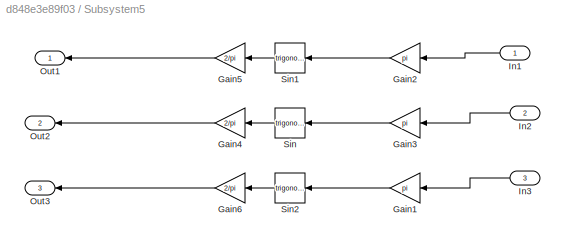
BLOCK [SubSystem] Subsystem5
  NameLocation = top
  Ports = [3, 3]
  RequestExecContextInheritance = off
BLOCK [Gain] Subsystem5/Gain1
  Gain = pi
  NameLocation = top
BLOCK [Gain] Subsystem5/Gain2
  Gain = pi
  NameLocation = top
BLOCK [Gain] Subsystem5/Gain3
  Gain = pi
  NameLocation = top
BLOCK [Gain] Subsystem5/Gain4
  Gain = 2/pi
  NameLocation = top
BLOCK [Gain] Subsystem5/Gain5
  Gain = 2/pi
  NameLocation = top
BLOCK [Gain] Subsystem5/Gain6
  Gain = 2/pi
  NameLocation = top
BLOCK [Inport] Subsystem5/In1
BLOCK [Inport] Subsystem5/In2
  Port = 2
BLOCK [Inport] Subsystem5/In3
  Port = 3
BLOCK [Outport] Subsystem5/Out1
  NameLocation = top
BLOCK [Outport] Subsystem5/Out2
  NameLocation = top
  Port = 2
BLOCK [Outport] Subsystem5/Out3
  NameLocation = top
  Port = 3
BLOCK [Trigonometry] Subsystem5/Sin
  NameLocation = top
  Ports = [1, 1]
BLOCK [Trigonometry] Subsystem5/Sin1
  NameLocation = top
  Ports = [1, 1]
BLOCK [Trigonometry] Subsystem5/Sin2
  NameLocation = top
  Ports = [1, 1]
BLOCK [Sum] Subtract
  IconShape = rectangular
  Inputs = +-
  Ports = [2, 1]
BLOCK [TransferFcn] Transfer Fcn
  Denominator = [sd4 sd3 sd2 sd1 sd0]
  Numerator = [sn3 0 0 0]
BLOCK [SubSystem] Triangle Generator-A
  Ports = [1, 1]
  RequestExecContextInheritance = off
BLOCK [Sum] Triangle Generator-A/Add
  IconShape = rectangular
  Ports = [2, 1]
BLOCK [Trigonometry] Triangle Generator-A/Asin
  Operator = asin
  Ports = [1, 1]
BLOCK [Outport] Triangle Generator-A/Carrier
BLOCK [Gain] Triangle Generator-A/Gain
  Gain = 2/pi
BLOCK [Inport] Triangle Generator-A/Phase
BLOCK [Product] Triangle Generator-A/Product
  Ports = [2, 1]
BLOCK [Product] Triangle Generator-A/Product1
  Ports = [2, 1]
BLOCK [Scope] Triangle Generator-A/Scope
  Floating = off
  NumInputPorts = 1
  Ports = [1]
  ScopeSpecificationString = Simulink.scopes.TimeScopeBlockCfg('CurrentConfiguration', extmgr.ConfigurationSet(extmgr.Configuration('Core','General UI',true),extmgr.Configuration('Core','Source UI',true),extmgr.Configuration('Sources','WiredSimulink',true),extmgr.Configuration('Visuals','Time Domain',true,'SerializedDisplays',{struct('MinYLimReal','-1.25','MaxYLimReal','1.08265','YLabelReal','','MinYLimMag','0.00000','MaxYLim...<+1360ch>
BLOCK [Scope] Triangle Generator-A/Scope1
  Floating = off
  NumInputPorts = 1
  Ports = [1]
  ScopeSpecificationString = Simulink.scopes.TimeScopeBlockCfg('CurrentConfiguration', extmgr.ConfigurationSet(extmgr.Configuration('Core','General UI',true),extmgr.Configuration('Core','Source UI',true),extmgr.Configuration('Sources','WiredSimulink',true,'DataLoggingVariableName','ScopeData1'),extmgr.Configuration('Visuals','Time Domain',true,'SerializedDisplays',{struct('MinYLimReal','-0.96344','MaxYLimReal','1.21757','YLab...<+1436ch>
BLOCK [Trigonometry] Triangle Generator-A/Sin
  Ports = [1, 1]
BLOCK [Trigonometry] Triangle Generator-A/Sin1
  Operator = cos
  Ports = [1, 1]
BLOCK [Sin] Triangle Generator-A/Sine Wave
  Frequency = 2*pi*fsw
  Ports = [0, 1]
  SampleTime = 0
BLOCK [Sin] Triangle Generator-A/Sine Wave1
  Frequency = 2*pi*fsw
  Phase = -pi/2
  Ports = [0, 1]
  SampleTime = 0
BLOCK [SubSystem] Triangle Generator-A1
  Ports = [1, 1]
  RequestExecContextInheritance = off
BLOCK [Sum] Triangle Generator-A1/Add
  IconShape = rectangular
  Ports = [2, 1]
BLOCK [Trigonometry] Triangle Generator-A1/Asin
  Operator = asin
  Ports = [1, 1]
BLOCK [Outport] Triangle Generator-A1/Carrier
BLOCK [Gain] Triangle Generator-A1/Gain
  Gain = 2/pi
BLOCK [Inport] Triangle Generator-A1/Phase
BLOCK [Product] Triangle Generator-A1/Product
  Ports = [2, 1]
BLOCK [Product] Triangle Generator-A1/Product1
  Ports = [2, 1]
BLOCK [Scope] Triangle Generator-A1/Scope
  Floating = off
  NumInputPorts = 1
  Ports = [1]
  ScopeSpecificationString = Simulink.scopes.TimeScopeBlockCfg('CurrentConfiguration', extmgr.ConfigurationSet(extmgr.Configuration('Core','General UI',true),extmgr.Configuration('Core','Source UI',true),extmgr.Configuration('Sources','WiredSimulink',true),extmgr.Configuration('Visuals','Time Domain',true,'SerializedDisplays',{struct('MinYLimReal','-1.76777','MaxYLimReal','1.76777','YLabelReal','','MinYLimMag','0.00000','MaxY...<+1372ch>
BLOCK [Scope] Triangle Generator-A1/Scope1
  Floating = off
  NumInputPorts = 1
  Ports = [1]
  ScopeSpecificationString = Simulink.scopes.TimeScopeBlockCfg('CurrentConfiguration', extmgr.ConfigurationSet(extmgr.Configuration('Core','General UI',true),extmgr.Configuration('Core','Source UI',true),extmgr.Configuration('Sources','WiredSimulink',true,'DataLoggingVariableName','ScopeData1'),extmgr.Configuration('Visuals','Time Domain',true,'SerializedDisplays',{struct('MinYLimReal','-1.9635','MaxYLimReal','1.9635','YLabel...<+1406ch>
BLOCK [Trigonometry] Triangle Generator-A1/Sin
  Ports = [1, 1]
BLOCK [Trigonometry] Triangle Generator-A1/Sin1
  Operator = cos
  Ports = [1, 1]
BLOCK [Sin] Triangle Generator-A1/Sine Wave
  Frequency = 2*pi*fsw
  Ports = [0, 1]
  SampleTime = 0
BLOCK [Sin] Triangle Generator-A1/Sine Wave1
  Frequency = 2*pi*fsw
  Phase = -pi/2
  Ports = [0, 1]
  SampleTime = 0
BLOCK [SubSystem] Triangle Generator-A2
  Ports = [1, 2]
  RequestExecContextInheritance = off
BLOCK [Sum] Triangle Generator-A2/Add
  IconShape = rectangular
  Ports = [2, 1]
BLOCK [Trigonometry] Triangle Generator-A2/Asin
  Operator = asin
  Ports = [1, 1]
BLOCK [Outport] Triangle Generator-A2/Carrier
BLOCK [Gain] Triangle Generator-A2/Gain
  Gain = 2/pi
BLOCK [Inport] Triangle Generator-A2/Phase
BLOCK [Product] Triangle Generator-A2/Product
  Ports = [2, 1]
BLOCK [Product] Triangle Generator-A2/Product1
  Ports = [2, 1]
BLOCK [Scope] Triangle Generator-A2/Scope
  Floating = off
  NumInputPorts = 1
  Ports = [1]
  ScopeSpecificationString = Simulink.scopes.TimeScopeBlockCfg('CurrentConfiguration', extmgr.ConfigurationSet(extmgr.Configuration('Core','General UI',true),extmgr.Configuration('Core','Source UI',true),extmgr.Configuration('Sources','WiredSimulink',true),extmgr.Configuration('Visuals','Time Domain',true,'SerializedDisplays',{struct('MinYLimReal','-1.25','MaxYLimReal','1.1168','YLabelReal','','MinYLimMag','0.00000','MaxYLimM...<+1358ch>
BLOCK [Scope] Triangle Generator-A2/Scope1
  Floating = off
  NumInputPorts = 1
  Ports = [1]
  ScopeSpecificationString = Simulink.scopes.TimeScopeBlockCfg('CurrentConfiguration', extmgr.ConfigurationSet(extmgr.Configuration('Core','General UI',true),extmgr.Configuration('Core','Source UI',true),extmgr.Configuration('Sources','WiredSimulink',true,'DataLoggingVariableName','ScopeData1'),extmgr.Configuration('Visuals','Time Domain',true,'SerializedDisplays',{struct('MinYLimReal','-1.43882','MaxYLimReal','1.70924','YLab...<+1412ch>
BLOCK [Trigonometry] Triangle Generator-A2/Sin
  Ports = [1, 1]
BLOCK [Trigonometry] Triangle Generator-A2/Sin1
  Operator = cos
  Ports = [1, 1]
BLOCK [Outport] Triangle Generator-A2/Sine
  Port = 2
BLOCK [Sin] Triangle Generator-A2/Sine Wave
  Frequency = 2*pi*fsw
  Ports = [0, 1]
  SampleTime = 0
BLOCK [Sin] Triangle Generator-A2/Sine Wave1
  Frequency = 2*pi*fsw
  Phase = -pi/2
  Ports = [0, 1]
  SampleTime = 0
BLOCK [Reference] Voltage Measurement  REF=spsVoltageMeasurementLib/Voltage Measurement
  Ports = [0, 1, 0, 0, 0, 2]
  SourceBlock = spsVoltageMeasurementLib/Voltage Measurement
  SourceProductBaseCode = PS
  SourceType = Voltage Measurement
  UserDataPersistent = on
BLOCK [Reference] Voltage Measurement1  REF=spsVoltageMeasurementLib/Voltage Measurement
  Ports = [0, 1, 0, 0, 0, 2]
  SourceBlock = spsVoltageMeasurementLib/Voltage Measurement
  SourceProductBaseCode = PS
  SourceType = Voltage Measurement
  UserDataPersistent = on
BLOCK [Reference] Voltage Measurement2  REF=spsVoltageMeasurementLib/Voltage Measurement
  NameLocation = left
  Ports = [0, 1, 0, 0, 0, 2]
  SourceBlock = spsVoltageMeasurementLib/Voltage Measurement
  SourceProductBaseCode = PS
  SourceType = Voltage Measurement
  UserDataPersistent = on
BLOCK [Reference] Zero Crossing2  REF=dspsigops/Zero Crossing
  Ports = [1, 1]
  SourceBlock = dspsigops/Zero Crossing
  SourceProductBaseCode = DS
  SourceType = Zero Crossing
  UserDataPersistent = on
BLOCK [Constant] Zero3
  NameLocation = top
  OutDataTypeStr = Inherit: Inherit via back propagation
  Value = 1e-15
BLOCK [Reference] powergui  REF=spspowerguiLib/powergui
  Ports = []
  Priority = 1
  SourceBlock = spspowerguiLib/powergui
  SourceProductBaseCode = PS
  SourceType = PSB option menu block
LINE Abs:1 -> Scope13:1
NET Add1:1 -> Goto20:1, Scope19:1
NET Add2:1 -> Product11:2, Scope23:2
NET Add3:1 -> Delay1:1, Goto7:1
LINE Add4:1 -> Product16:2
LINE Add5:1 -> Divide1:1
NET Add6:1 -> Goto6:1, Scope28:1
NET Add7:1 -> Delay2:1, Goto30:1
LINE Add8:1 -> Sqrt2:1
NET Add:1 -> Goto4:1, Scope18:1
LINE Atan1:1 -> Gain34:1
LINE Atan:1 -> Gain22:1
NET Constant1:1 -> Product1:1, Square3:1
LINE Constant2:1 -> Goto19:1
NET Constant3:1 -> Product6:1, Product7:1, Square7:1
NET Constant4:1 -> MATLAB Function:4, Scope15:4
LINE Constant5:1 -> Product12:1
NET Constant6:1 -> Product13:1, Product14:1, Square12:1
NET Constant7:1 -> Product21:1, Square16:1
NET Constant8:1 -> Product25:1, Square20:1
LINE Constant:1 -> Goto18:1
LINE Cos2:1 -> Product6:2
LINE Cos3:1 -> Product7:2
LINE Cos4:1 -> Product13:2
LINE Cos5:1 -> Product12:2
LINE Cos6:1 -> Product14:2
LINE Cos8:1 -> Product21:2
LINE Cos9:1 -> Product25:2
LINE Cos:1 -> Product1:2
LINE Current Measurement:1 -> Scope4:1
LINE Data Type Conversion1:1 -> Subtract:2
LINE Data Type Conversion2:1 -> Mux2:1
LINE Data Type Conversion4:1 -> Mux:1
LINE Data Type Conversion5:1 -> Mux1:1
NET Data Type Conversion6:1 -> Mux1:2, Mux2:2, Mux:2
LINE Data Type Conversion:1 -> Subtract:1
LINE Delay1:1 -> Triangle Generator-A1:1
LINE Delay2:1 -> Triangle Generator-A2:1
LINE Delay:1 -> Triangle Generator-A:1
LINE Divide1:1 -> Atan:1
NET Divide3:1 -> Goto27:1, Scope20:1
NET Divide4:1 -> Goto26:1, Scope21:1
LINE Divide:1 -> Scope25:1
LINE From10:1 -> Gain29:1
LINE From11:1 -> Gain13:1
LINE From12:1 -> Gain12:1
LINE From13:1 -> Gain9:1
LINE From14:1 -> Gain30:1
LINE From15:1 -> Zero Crossing2:1
LINE From16:1 -> Scope:2
LINE From18:1 -> Scope38:1
LINE From19:1 -> Scope38:2
LINE From1:1 -> Scope29:2
LINE From20:1 -> Scope38:3
LINE From21:1 -> Data Type Conversion:1
LINE From22:1 -> Data Type Conversion1:1
LINE From23:1 -> Data Type Conversion4:1
LINE From24:1 -> Data Type Conversion5:1
LINE From26:1 -> Data Type Conversion2:1
LINE From27:1 -> Scope:1
LINE From28:1 -> Gain:1
LINE From29:1 -> Scope9:1
LINE From2:1 -> Scope29:3
LINE From30:1 -> Scope10:1
LINE From31:1 -> Scope11:1
LINE From32:1 -> Gain28:1
LINE From34:1 -> Subsystem5:1
LINE From35:1 -> Subsystem5:2
LINE From36:1 -> Subsystem5:3
NET From37:1 -> MATLAB Function:3, Scope15:3
NET From38:1 -> MATLAB Function:1, Scope15:1
NET From39:1 -> MATLAB Function:2, Scope15:2
LINE From3:1 -> Scope30:1
NET From40:1 -> Product2:2, Square2:1
NET From41:1 -> Product:1, Square:1
NET From42:1 -> Product2:1, Square1:1
LINE From43:1 -> Cos:1
LINE From44:1 -> Cos1:1
LINE From45:1 -> Square6:1
NET From46:1 -> Product3:1, Product4:1, Square4:1
NET From47:1 -> Product3:2, Product5:1, Square5:1
LINE From48:1 -> Cos2:1
LINE From49:1 -> Cos3:1
LINE From4:1 -> Scope30:2
LINE From50:1 -> Product8:2
LINE From54:1 -> Square9:1
LINE From56:1 -> Cos5:1
NET From57:1 -> Product9:1, Square11:1
NET From58:1 -> Product10:1, Square8:1
NET From59:1 -> Product9:2, Square10:1
LINE From5:1 -> Scope30:3
LINE From60:1 -> Cos4:1
LINE From61:1 -> Cos6:1
NET From62:1 -> Product11:1, Scope23:1
LINE From63:1 -> Product15:1
LINE From64:1 -> Gain15:1
LINE From65:1 -> Add4:1
LINE From66:1 -> Add4:2
LINE From67:1 -> Product16:1
LINE From68:1 -> Gain18:1
LINE From69:1 -> Product17:2
LINE From6:1 -> Add3:1
LINE From70:1 -> Add5:1
LINE From71:1 -> Add5:2
NET From72:1 -> Product22:2, Square15:1
LINE From73:1 -> Product18:1
LINE From74:1 -> Gain20:1
NET From75:1 -> Product19:1, Square13:1
NET From76:1 -> Product22:1, Square14:1
LINE From77:1 -> Cos8:1
LINE From78:1 -> Add3:2
NET From79:1 -> Delay:1, Goto2:1
LINE From7:1 -> Add7:3
LINE From80:1 -> Divide3:2
LINE From81:1 -> Divide4:2
NET From84:1 -> Product26:2, Square19:1
NET From85:1 -> Product23:1, Square17:1
NET From86:1 -> Product26:1, Square18:1
LINE From87:1 -> Cos9:1
LINE From88:1 -> Cos10:1
LINE From89:1 -> Sqrt3:1
LINE From8:1 -> Add7:2
LINE From9:1 -> Add7:1
LINE From:1 -> Scope29:1
LINE Gain10:1 -> Divide3:1
NET Gain12:1 -> Scope17:1, Scope27:1
NET Gain13:1 -> Scope16:1, Scope27:2
LINE Gain14:1 -> Add2:5
LINE Gain15:1 -> Product15:2
LINE Gain16:1 -> Add2:6
LINE Gain17:1 -> Divide4:1
LINE Gain18:1 -> Product17:1
LINE Gain19:1 -> Divide:2
LINE Gain20:1 -> Product18:2
LINE Gain21:1 -> Divide1:2
NET Gain22:1 -> Gain23:1, Goto25:1
LINE Gain23:1 -> Scope22:1
LINE Gain25:1 -> Add6:5
LINE Gain27:1 -> Add6:6
LINE Gain28:1 -> Scope27:3
LINE Gain29:1 -> Scope8:2
LINE Gain2:1 -> Add:5
LINE Gain30:1 -> Scope8:3
LINE Gain31:1 -> Add8:5
LINE Gain32:1 -> Add8:6
LINE Gain33:1 -> Scope26:1
NET Gain34:1 -> Gain35:1, Goto28:1, Scope31:1
NET Gain35:1 -> Gain33:1, Goto5:1
LINE Gain3:1 -> Add:6
LINE Gain5:1 -> Add1:5
LINE Gain6:1 -> Add1:7
LINE Gain7:1 -> Add1:6
LINE Gain9:1 -> Scope8:1
LINE Gain:1 -> Controlled Voltage Source:1
LINE MATLAB Function1:1 -> Product15:3
NET MATLAB Function2:1 -> Atan1:1, Scope32:1
NET MATLAB Function3:1 -> Atan1:2, Scope32:2
NET MATLAB Function:1 -> Goto3:1, Scope14:1
LINE Mux1:1 -> Scope39:2
LINE Mux2:1 -> Scope39:3
LINE Mux:1 -> Scope39:1
LINE Product10:1 -> Gain16:1
LINE Product11:1 -> Sqrt:1
LINE Product12:1 -> Product8:3
LINE Product13:1 -> Product10:2
LINE Product15:1 -> Gain17:1
LINE Product16:1 -> Divide:1
LINE Product17:1 -> Gain19:1
LINE Product18:1 -> Gain21:1
LINE Product19:1 -> Gain25:1
LINE Product1:1 -> Product:2
LINE Product21:1 -> Product19:2
LINE Product22:1 -> Gain27:1
LINE Product23:1 -> Gain31:1
LINE Product25:1 -> Product23:2
LINE Product26:1 -> Gain32:1
LINE Product2:1 -> Gain3:1
LINE Product3:1 -> Gain5:1
LINE Product4:1 -> Gain7:1
LINE Product5:1 -> Gain6:1
NET Product6:1 -> Product4:2, Product5:2
LINE Product8:1 -> Gain10:1
LINE Product9:1 -> Gain14:1
LINE Product:1 -> Gain2:1
NET Relational Operator1:1 -> Goto15:1, Scope7:1
LINE Relational Operator2:1 -> Goto16:1
NET Relational Operator:1 -> Goto14:1, Scope6:1
NET Sine Wave1:1 -> Goto12:1, Subsystem3:1
NET Sine Wave2:1 -> Goto13:1, Subsystem4:1
NET Sine Wave:1 -> Goto11:1, Subsystem2:1
LINE Sqrt1:1 -> Display:1
LINE Sqrt2:1 -> MATLAB Function2:1
LINE Sqrt3:1 -> MATLAB Function3:1
LINE Sqrt:1 -> MATLAB Function1:1
LINE Square10:1 -> Add2:2
LINE Square11:1 -> Add2:3
LINE Square12:1 -> Add2:4
NET Square13:1 -> Add6:1, Scope33:1
LINE Square14:1 -> Add6:2
LINE Square15:1 -> Add6:3
LINE Square16:1 -> Add6:4
LINE Square17:1 -> Add8:1
LINE Square18:1 -> Add8:2
LINE Square19:1 -> Add8:3
LINE Square1:1 -> Add:2
LINE Square20:1 -> Add8:4
LINE Square2:1 -> Add:3
LINE Square3:1 -> Add:4
LINE Square4:1 -> Add1:1
LINE Square5:1 -> Add1:2
LINE Square6:1 -> Add1:3
LINE Square7:1 -> Add1:4
LINE Square8:1 -> Add2:1
LINE Square9:1 -> Product8:1
LINE Square:1 -> Add:1
LINE Subsystem2/Add:1 -> Subsystem2/Gain:1
LINE Subsystem2/Constant2:1 -> Subsystem2/Add:1
LINE Subsystem2/Gain:1 -> Subsystem2/Out1:1
LINE Subsystem2/In1:1 -> Subsystem2/Saturation1:1
NET Subsystem2/Saturation1:1 -> Subsystem2/Add:2, Subsystem2/Out2:1
LINE Subsystem2:1 -> Goto:1
LINE Subsystem2:2 -> Relational Operator:1
LINE Subsystem3/Add1:1 -> Subsystem3/Gain1:1
LINE Subsystem3/Constant3:1 -> Subsystem3/Add1:1
LINE Subsystem3/Gain1:1 -> Subsystem3/Out1:1
LINE Subsystem3/In1:1 -> Subsystem3/Saturation2:1
NET Subsystem3/Saturation2:1 -> Subsystem3/Add1:2, Subsystem3/Out2:1
LINE Subsystem3:1 -> Goto1:1
LINE Subsystem3:2 -> Relational Operator1:1
LINE Subsystem4/Add1:1 -> Subsystem4/Gain1:1
LINE Subsystem4/Constant3:1 -> Subsystem4/Add1:1
LINE Subsystem4/Gain1:1 -> Subsystem4/Out1:1
LINE Subsystem4/In1:1 -> Subsystem4/Saturation2:1
NET Subsystem4/Saturation2:1 -> Subsystem4/Add1:2, Subsystem4/Out2:1
LINE Subsystem4:1 -> Goto21:1
LINE Subsystem4:2 -> Relational Operator2:1
LINE Subsystem5/Gain1:1 -> Subsystem5/Sin2:1
LINE Subsystem5/Gain2:1 -> Subsystem5/Sin1:1
LINE Subsystem5/Gain3:1 -> Subsystem5/Sin:1
LINE Subsystem5/Gain4:1 -> Subsystem5/Out2:1
LINE Subsystem5/Gain5:1 -> Subsystem5/Out1:1
LINE Subsystem5/Gain6:1 -> Subsystem5/Out3:1
LINE Subsystem5/In1:1 -> Subsystem5/Gain2:1
LINE Subsystem5/In2:1 -> Subsystem5/Gain3:1
LINE Subsystem5/In3:1 -> Subsystem5/Gain1:1
LINE Subsystem5/Sin1:1 -> Subsystem5/Gain5:1
LINE Subsystem5/Sin2:1 -> Subsystem5/Gain6:1
LINE Subsystem5/Sin:1 -> Subsystem5/Gain4:1
LINE Subsystem5:1 -> Goto22:1
LINE Subsystem5:2 -> Goto23:1
LINE Subsystem5:3 -> Goto24:1
NET Subtract:1 -> Goto17:1, Scope2:1, Transfer Fcn:1
NET Transfer Fcn:1 -> Abs:1, Scope12:1
NET Triangle Generator-A/Add:1 -> Triangle Generator-A/Asin:1, Triangle Generator-A/Scope:1
LINE Triangle Generator-A/Asin:1 -> Triangle Generator-A/Gain:1
NET Triangle Generator-A/Gain:1 -> Triangle Generator-A/Carrier:1, Triangle Generator-A/Scope1:1
NET Triangle Generator-A/Phase:1 -> Triangle Generator-A/Sin1:1, Triangle Generator-A/Sin:1
LINE Triangle Generator-A/Product1:1 -> Triangle Generator-A/Add:2
LINE Triangle Generator-A/Product:1 -> Triangle Generator-A/Add:1
LINE Triangle Generator-A/Sin1:1 -> Triangle Generator-A/Product1:1
LINE Triangle Generator-A/Sin:1 -> Triangle Generator-A/Product:1
LINE Triangle Generator-A/Sine Wave1:1 -> Triangle Generator-A/Product1:2
LINE Triangle Generator-A/Sine Wave:1 -> Triangle Generator-A/Product:2
NET Triangle Generator-A1/Add:1 -> Triangle Generator-A1/Asin:1, Triangle Generator-A1/Scope:1
LINE Triangle Generator-A1/Asin:1 -> Triangle Generator-A1/Gain:1
NET Triangle Generator-A1/Gain:1 -> Triangle Generator-A1/Carrier:1, Triangle Generator-A1/Scope1:1
NET Triangle Generator-A1/Phase:1 -> Triangle Generator-A1/Sin1:1, Triangle Generator-A1/Sin:1
LINE Triangle Generator-A1/Product1:1 -> Triangle Generator-A1/Add:2
LINE Triangle Generator-A1/Product:1 -> Triangle Generator-A1/Add:1
LINE Triangle Generator-A1/Sin1:1 -> Triangle Generator-A1/Product1:1
LINE Triangle Generator-A1/Sin:1 -> Triangle Generator-A1/Product:1
LINE Triangle Generator-A1/Sine Wave1:1 -> Triangle Generator-A1/Product1:2
LINE Triangle Generator-A1/Sine Wave:1 -> Triangle Generator-A1/Product:2
NET Triangle Generator-A1:1 -> Goto9:1, Relational Operator1:2
NET Triangle Generator-A2/Add:1 -> Triangle Generator-A2/Asin:1, Triangle Generator-A2/Scope:1, Triangle Generator-A2/Sine:1
LINE Triangle Generator-A2/Asin:1 -> Triangle Generator-A2/Gain:1
NET Triangle Generator-A2/Gain:1 -> Triangle Generator-A2/Carrier:1, Triangle Generator-A2/Scope1:1
NET Triangle Generator-A2/Phase:1 -> Triangle Generator-A2/Sin1:1, Triangle Generator-A2/Sin:1
LINE Triangle Generator-A2/Product1:1 -> Triangle Generator-A2/Add:2
LINE Triangle Generator-A2/Product:1 -> Triangle Generator-A2/Add:1
LINE Triangle Generator-A2/Sin1:1 -> Triangle Generator-A2/Product1:1
LINE Triangle Generator-A2/Sin:1 -> Triangle Generator-A2/Product:1
LINE Triangle Generator-A2/Sine Wave1:1 -> Triangle Generator-A2/Product1:2
LINE Triangle Generator-A2/Sine Wave:1 -> Triangle Generator-A2/Product:2
NET Triangle Generator-A2:1 -> Goto10:1, Relational Operator2:2
NET Triangle Generator-A:1 -> Goto8:1, Relational Operator:2
LINE Voltage Measurement1:1 -> Scope3:1
LINE Voltage Measurement2:1 -> Scope5:1
LINE Voltage Measurement:1 -> Scope1:1
LINE Zero Crossing2:1 -> Data Type Conversion6:1
LINE Zero3:1 -> Sqrt1:1
PNET net1: Controlled Voltage Source:LConn1 -- Series RLC Branch3:RConn1 -- Series RLC Branch8:RConn1 -- Voltage Measurement2:LConn2
PLINE Controlled Voltage Source:RConn1 -- Series RLC Branch:LConn1
PNET net2: Current Measurement:LConn1 -- Diode2:RConn1 -- Diode:RConn1 -- Voltage Measurement1:LConn1
PNET net3: Current Measurement:RConn1 -- Series RLC Branch7:LConn1 -- Voltage Measurement:LConn1
PNET net4: Diode1:LConn1 -- Diode3:LConn1 -- Series RLC Branch7:RConn1 -- Voltage Measurement1:LConn2 -- Voltage Measurement:LConn2
PLINE Diode1:RConn1 -- Diode:LConn1
PLINE Diode2:LConn1 -- Diode3:RConn1
PLINE Series RLC Branch1:LConn1 -- Series RLC Branch4:RConn1
PNET net5: Series RLC Branch1:RConn1 -- Series RLC Branch8:LConn1 -- Voltage Measurement2:LConn1
PLINE Series RLC Branch2:LConn1 -- Series RLC Branch:RConn1
PNET net6: Series RLC Branch2:RConn1 -- Series RLC Branch3:LConn1 -- Series RLC Branch4:LConn1
note: NET lines group one-source signal fan-out (src -> all destinations, sorted); 1:1 wires keep LINE; PNET lines group multi-terminal physical nets as a canonical sorted terminal list (undirected conserving connections); 2-terminal nets keep the pairwise PLINE form
CHART MATLAB Function1 states=1 transitions=1
  STATE_LABEL 'eML_blk_kernel()'
  STATE_LABEL 'SCRIPT:\nfunction y = fcn(u)\n\nif isnan(u)\n    y=0;\nelse\ny = u;\nend\n'
CHART MATLAB Function states=1 transitions=1
  STATE_LABEL 'eML_blk_kernel()'
  STATE_LABEL 'SCRIPT:\nfunction phi = fcn(SA, SB, SC, SABC)\n\nif SABC < SA- abs(SB-SC)\n    phi=0;\nelseif SABC > SA + abs(SB-SC)\n        phi=0;   \nelse\n   phi=acos((SA^2-(SB-SC)^2+SABC^2)/(SA*SABC));\n   \nend\n\n    '
CHART MATLAB Function2 states=1 transitions=1
  STATE_LABEL 'eML_blk_kernel()'
  STATE_LABEL 'SCRIPT:\nfunction y = fcn(u)\n\nif isnan(u)\n    y=0;\nelse\ny = u;\nend\n'
CHART MATLAB Function3 states=1 transitions=1
  STATE_LABEL 'eML_blk_kernel()'
  STATE_LABEL 'SCRIPT:\nfunction y = fcn(u)\n\nif isnan(u)\n    y=0;\nelse\ny = u;\nend\n'
CHART  states=0 transitions=0
CHART  states=0 transitions=0
CHART  states=0 transitions=0
CHART  states=0 transitions=0
